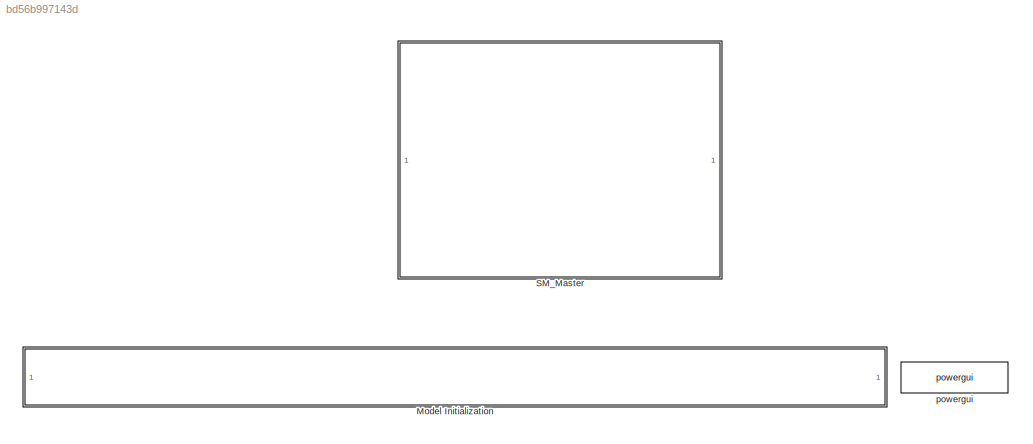
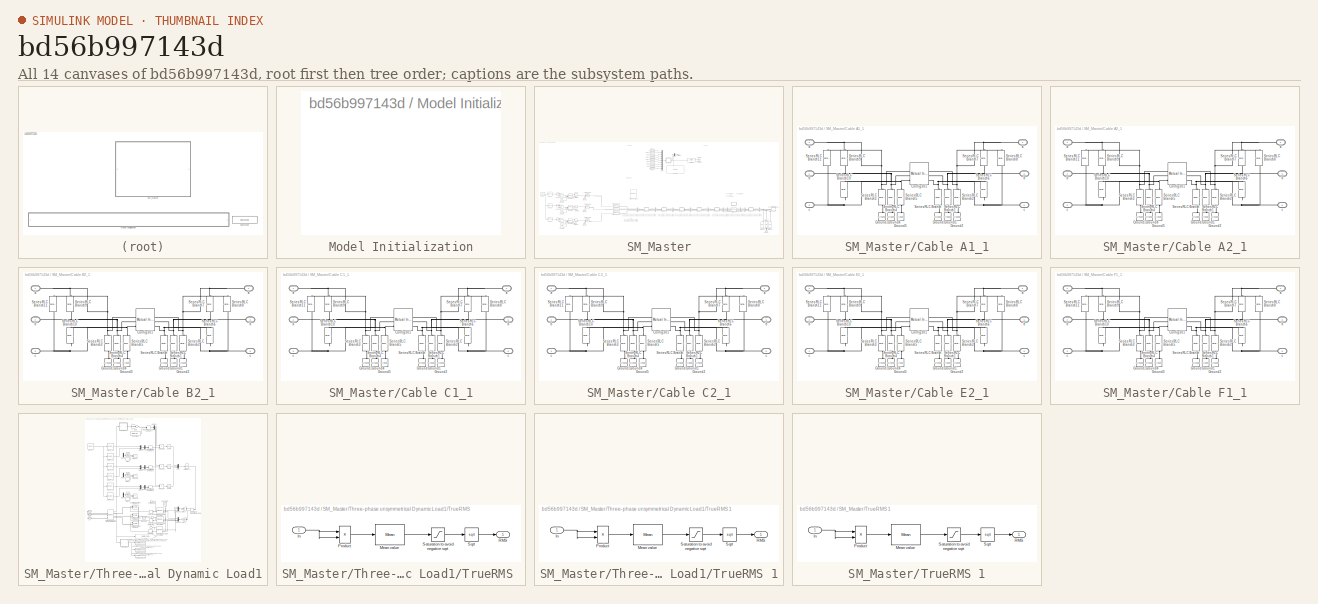
[diagram: thumbnail index - all 14 canvases of the model, root first then tree order]
MODEL slx_bd56b997143d
KIND model
CONFIG AbsTol = auto
CONFIG EnableMultiTasking = off
CONFIG FixedStep = Ts
CONFIG InitFcn = Ts=1e-4;run('Grid_Parameters_3ph.m');load('Data_3ph_Pars.mat');load('First_Busbar_Pars.mat');run('line_parameters.m')
CONFIG MaxStep = auto
CONFIG MinStep = auto
CONFIG PostLoadFcn = Ts=1e-4;run('Grid_Parameters_3ph.m');load('Data_3ph_Pars.mat');load('First_Busbar_Pars.mat');run('line_parameters.m')
CONFIG PreLoadFcn = Ts=1e-4;run('Grid_Parameters_3ph.m');load('Data_3ph_Pars.mat');load('First_Busbar_Pars.mat');run('line_parameters.m')
CONFIG RelTol = 1e-3
CONFIG SampleTimeConstraint = Unconstrained
CONFIG SolverName = ode4
CONFIG StartFcn = Ts=1e-4;run('Grid_Parameters_3ph.m');load('Data_3ph_Pars.mat');load('First_Busbar_Pars.mat');run('line_parameters.m')
CONFIG StartTime = 0.0
CONFIG StopTime = stoptime
BLOCK [SubSystem] Model Initialization
  CopyFcn = set_param(gcb,'LinkStatus','none')
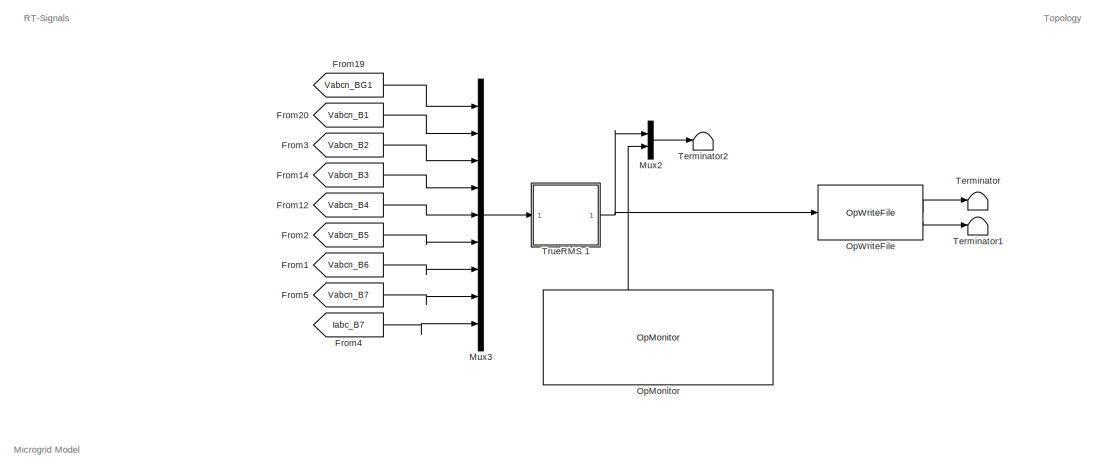
[diagram: SM_Master - part 1/4, top center region]
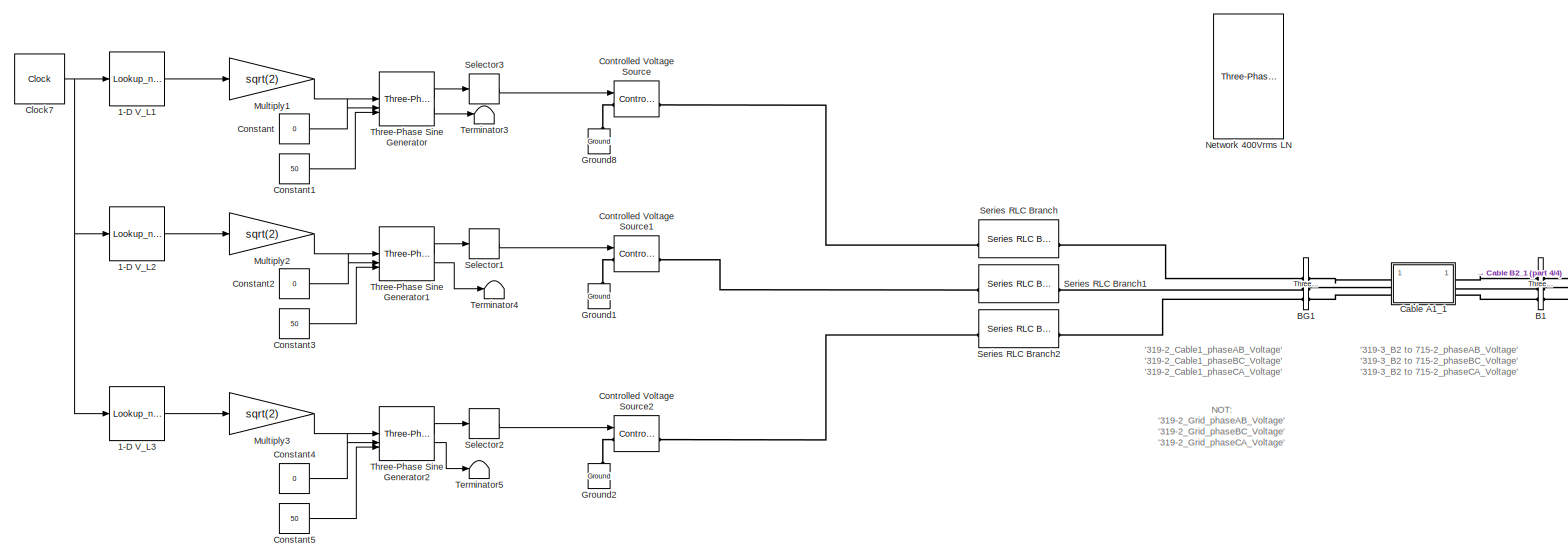
[diagram: SM_Master - part 2/4, bottom left region]
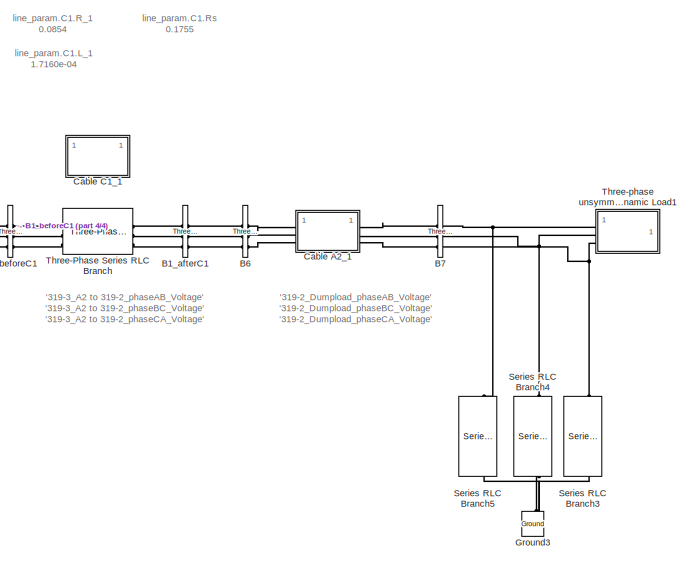
[diagram: SM_Master - part 3/4, bottom right region]
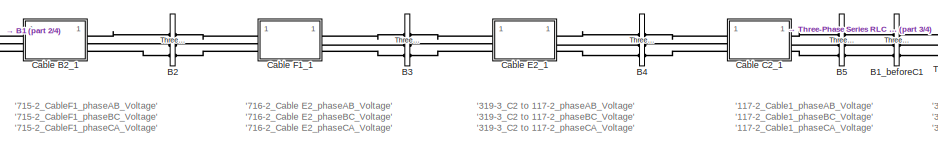
[diagram: SM_Master - part 4/4, bottom center region]
BLOCK [SubSystem] SM_Master
BLOCK [Lookup_n-D] SM_Master/1-D V_L1
  BreakpointsForDimension1 = t_factor * [0:timestep_meas_data:(First_Busbar_Pars.Time(datastop)-First_Busbar_Pars.Time(datastart))]'
  InputPortMap = u0
  InternalRulePriority = Speed
  InterpMethod = Flat
  NumberOfTableDimensions = 1
  RndMeth = Simplest
  Table = First_Busbar_Pars.VoltageL1(datastart:datastop)
BLOCK [Lookup_n-D] SM_Master/1-D V_L2
  BreakpointsForDimension1 = t_factor * [0:timestep_meas_data:(First_Busbar_Pars.Time(datastop)-First_Busbar_Pars.Time(datastart))]'
  InputPortMap = u0
  InternalRulePriority = Speed
  InterpMethod = Flat
  NumberOfTableDimensions = 1
  RndMeth = Simplest
  Table = First_Busbar_Pars.VoltageL2(datastart:datastop)
BLOCK [Lookup_n-D] SM_Master/1-D V_L3
  BreakpointsForDimension1 = t_factor * [0:timestep_meas_data:(First_Busbar_Pars.Time(datastop)-First_Busbar_Pars.Time(datastart))]'
  InputPortMap = u0
  InternalRulePriority = Speed
  InterpMethod = Flat
  NumberOfTableDimensions = 1
  RndMeth = Simplest
  Table = First_Busbar_Pars.VoltageL3(datastart:datastop)
BLOCK [Reference] SM_Master/B1  REF=spsThreePhaseVIMeasurementLib/Three-Phase
V-I Measurement
  LibrarySourceBlock = sps_lib/Sensors and Measurements/Three-Phase\nV-I Measurement
  SourceBlock = spsThreePhaseVIMeasurementLib/Three-Phase\nV-I Measurement
  SourceType = Three-Phase VI Measurement
BLOCK [Reference] SM_Master/B1_afterC1  REF=spsThreePhaseVIMeasurementLib/Three-Phase
V-I Measurement
  LibrarySourceBlock = sps_lib/Sensors and Measurements/Three-Phase\nV-I Measurement
  SourceBlock = spsThreePhaseVIMeasurementLib/Three-Phase\nV-I Measurement
  SourceType = Three-Phase VI Measurement
BLOCK [Reference] SM_Master/B1_beforeC1  REF=spsThreePhaseVIMeasurementLib/Three-Phase
V-I Measurement
  LibrarySourceBlock = sps_lib/Sensors and Measurements/Three-Phase\nV-I Measurement
  SourceBlock = spsThreePhaseVIMeasurementLib/Three-Phase\nV-I Measurement
  SourceType = Three-Phase VI Measurement
BLOCK [Reference] SM_Master/B2  REF=spsThreePhaseVIMeasurementLib/Three-Phase
V-I Measurement
  LibrarySourceBlock = sps_lib/Sensors and Measurements/Three-Phase\nV-I Measurement
  SourceBlock = spsThreePhaseVIMeasurementLib/Three-Phase\nV-I Measurement
  SourceType = Three-Phase VI Measurement
BLOCK [Reference] SM_Master/B3  REF=spsThreePhaseVIMeasurementLib/Three-Phase
V-I Measurement
  LibrarySourceBlock = sps_lib/Sensors and Measurements/Three-Phase\nV-I Measurement
  SourceBlock = spsThreePhaseVIMeasurementLib/Three-Phase\nV-I Measurement
  SourceType = Three-Phase VI Measurement
BLOCK [Reference] SM_Master/B4  REF=spsThreePhaseVIMeasurementLib/Three-Phase
V-I Measurement
  LibrarySourceBlock = sps_lib/Sensors and Measurements/Three-Phase\nV-I Measurement
  SourceBlock = spsThreePhaseVIMeasurementLib/Three-Phase\nV-I Measurement
  SourceType = Three-Phase VI Measurement
BLOCK [Reference] SM_Master/B5  REF=spsThreePhaseVIMeasurementLib/Three-Phase
V-I Measurement
  LibrarySourceBlock = sps_lib/Sensors and Measurements/Three-Phase\nV-I Measurement
  SourceBlock = spsThreePhaseVIMeasurementLib/Three-Phase\nV-I Measurement
  SourceType = Three-Phase VI Measurement
BLOCK [Reference] SM_Master/B6  REF=spsThreePhaseVIMeasurementLib/Three-Phase
V-I Measurement
  LibrarySourceBlock = sps_lib/Sensors and Measurements/Three-Phase\nV-I Measurement
  SourceBlock = spsThreePhaseVIMeasurementLib/Three-Phase\nV-I Measurement
  SourceType = Three-Phase VI Measurement
BLOCK [Reference] SM_Master/B7  REF=spsThreePhaseVIMeasurementLib/Three-Phase
V-I Measurement
  LibrarySourceBlock = sps_lib/Sensors and Measurements/Three-Phase\nV-I Measurement
  SourceBlock = spsThreePhaseVIMeasurementLib/Three-Phase\nV-I Measurement
  SourceType = Three-Phase VI Measurement
BLOCK [Reference] SM_Master/BG1  REF=spsThreePhaseVIMeasurementLib/Three-Phase
V-I Measurement
  LibrarySourceBlock = sps_lib/Sensors and Measurements/Three-Phase\nV-I Measurement
  SourceBlock = spsThreePhaseVIMeasurementLib/Three-Phase\nV-I Measurement
  SourceType = Three-Phase VI Measurement
BLOCK [SubSystem] SM_Master/Cable A1_1
BLOCK [Reference] SM_Master/Cable A1_1/Config301  REF=spsMutualInductanceLib/Mutual Inductance
  AttributesFormatString = \n
  LibrarySourceBlock = sps_lib/Passives/Mutual Inductance
  SourceBlock = spsMutualInductanceLib/Mutual Inductance
  SourceType = Mutual Inductance
BLOCK [Reference] SM_Master/Cable A1_1/Ground  REF=spsGroundLib/Ground
  LibrarySourceBlock = sps_lib/Utilities/Ground
  NameLocation = right
  SourceBlock = spsGroundLib/Ground
  SourceType = Ground
BLOCK [Reference] SM_Master/Cable A1_1/Ground1  REF=spsGroundLib/Ground
  LibrarySourceBlock = sps_lib/Utilities/Ground
  NameLocation = right
  SourceBlock = spsGroundLib/Ground
  SourceType = Ground
BLOCK [Reference] SM_Master/Cable A1_1/Ground2  REF=spsGroundLib/Ground
  LibrarySourceBlock = sps_lib/Utilities/Ground
  NameLocation = right
  SourceBlock = spsGroundLib/Ground
  SourceType = Ground
BLOCK [Reference] SM_Master/Cable A1_1/Ground3  REF=spsGroundLib/Ground
  LibrarySourceBlock = sps_lib/Utilities/Ground
  NameLocation = right
  SourceBlock = spsGroundLib/Ground
  SourceType = Ground
BLOCK [Reference] SM_Master/Cable A1_1/Ground4  REF=spsGroundLib/Ground
  LibrarySourceBlock = sps_lib/Utilities/Ground
  NameLocation = right
  SourceBlock = spsGroundLib/Ground
  SourceType = Ground
BLOCK [Reference] SM_Master/Cable A1_1/Ground5  REF=spsGroundLib/Ground
  LibrarySourceBlock = sps_lib/Utilities/Ground
  NameLocation = right
  SourceBlock = spsGroundLib/Ground
  SourceType = Ground
BLOCK [Reference] SM_Master/Cable A1_1/Series RLC Branch  REF=spsSeriesRLCBranchLib/Series RLC Branch
  LibrarySourceBlock = sps_lib/Passives/Series RLC Branch
  NameLocation = left
  SourceBlock = spsSeriesRLCBranchLib/Series RLC Branch
  SourceType = Series RLC Branch
BLOCK [Reference] SM_Master/Cable A1_1/Series RLC Branch1  REF=spsSeriesRLCBranchLib/Series RLC Branch
  LibrarySourceBlock = sps_lib/Passives/Series RLC Branch
  NameLocation = left
  SourceBlock = spsSeriesRLCBranchLib/Series RLC Branch
  SourceType = Series RLC Branch
BLOCK [Reference] SM_Master/Cable A1_1/Series RLC Branch10  REF=spsSeriesRLCBranchLib/Series RLC Branch
  LibrarySourceBlock = sps_lib/Passives/Series RLC Branch
  NameLocation = left
  SourceBlock = spsSeriesRLCBranchLib/Series RLC Branch
  SourceType = Series RLC Branch
BLOCK [Reference] SM_Master/Cable A1_1/Series RLC Branch11  REF=spsSeriesRLCBranchLib/Series RLC Branch
  LibrarySourceBlock = sps_lib/Passives/Series RLC Branch
  NameLocation = left
  SourceBlock = spsSeriesRLCBranchLib/Series RLC Branch
  SourceType = Series RLC Branch
BLOCK [Reference] SM_Master/Cable A1_1/Series RLC Branch2  REF=spsSeriesRLCBranchLib/Series RLC Branch
  LibrarySourceBlock = sps_lib/Passives/Series RLC Branch
  NameLocation = left
  SourceBlock = spsSeriesRLCBranchLib/Series RLC Branch
  SourceType = Series RLC Branch
BLOCK [Reference] SM_Master/Cable A1_1/Series RLC Branch3  REF=spsSeriesRLCBranchLib/Series RLC Branch
  LibrarySourceBlock = sps_lib/Passives/Series RLC Branch
  NameLocation = left
  SourceBlock = spsSeriesRLCBranchLib/Series RLC Branch
  SourceType = Series RLC Branch
BLOCK [Reference] SM_Master/Cable A1_1/Series RLC Branch4  REF=spsSeriesRLCBranchLib/Series RLC Branch
  LibrarySourceBlock = sps_lib/Passives/Series RLC Branch
  NameLocation = left
  SourceBlock = spsSeriesRLCBranchLib/Series RLC Branch
  SourceType = Series RLC Branch
BLOCK [Reference] SM_Master/Cable A1_1/Series RLC Branch5  REF=spsSeriesRLCBranchLib/Series RLC Branch
  LibrarySourceBlock = sps_lib/Passives/Series RLC Branch
  NameLocation = left
  SourceBlock = spsSeriesRLCBranchLib/Series RLC Branch
  SourceType = Series RLC Branch
BLOCK [Reference] SM_Master/Cable A1_1/Series RLC Branch6  REF=spsSeriesRLCBranchLib/Series RLC Branch
  LibrarySourceBlock = sps_lib/Passives/Series RLC Branch
  NameLocation = left
  SourceBlock = spsSeriesRLCBranchLib/Series RLC Branch
  SourceType = Series RLC Branch
BLOCK [Reference] SM_Master/Cable A1_1/Series RLC Branch7  REF=spsSeriesRLCBranchLib/Series RLC Branch
  LibrarySourceBlock = sps_lib/Passives/Series RLC Branch
  NameLocation = left
  SourceBlock = spsSeriesRLCBranchLib/Series RLC Branch
  SourceType = Series RLC Branch
BLOCK [Reference] SM_Master/Cable A1_1/Series RLC Branch8  REF=spsSeriesRLCBranchLib/Series RLC Branch
  LibrarySourceBlock = sps_lib/Passives/Series RLC Branch
  NameLocation = left
  SourceBlock = spsSeriesRLCBranchLib/Series RLC Branch
  SourceType = Series RLC Branch
BLOCK [Reference] SM_Master/Cable A1_1/Series RLC Branch9  REF=spsSeriesRLCBranchLib/Series RLC Branch
  LibrarySourceBlock = sps_lib/Passives/Series RLC Branch
  NameLocation = left
  SourceBlock = spsSeriesRLCBranchLib/Series RLC Branch
  SourceType = Series RLC Branch
BLOCK [PMIOPort] SM_Master/Cable A1_1/a
  Side = Left
  Tag = PMCPort
BLOCK [PMIOPort] SM_Master/Cable A1_1/a 
  NameLocation = top
  Port = 4
  Side = Right
  Tag = PMCPort
BLOCK [PMIOPort] SM_Master/Cable A1_1/b
  Port = 2
  Side = Left
  Tag = PMCPort
BLOCK [PMIOPort] SM_Master/Cable A1_1/b 
  NameLocation = top
  Port = 5
  Side = Right
  Tag = PMCPort
BLOCK [PMIOPort] SM_Master/Cable A1_1/c
  Port = 3
  Side = Left
  Tag = PMCPort
BLOCK [PMIOPort] SM_Master/Cable A1_1/c 
  NameLocation = top
  Port = 6
  Side = Right
  Tag = PMCPort
BLOCK [SubSystem] SM_Master/Cable A2_1
BLOCK [Reference] SM_Master/Cable A2_1/Config301  REF=spsMutualInductanceLib/Mutual Inductance
  AttributesFormatString = \n
  LibrarySourceBlock = sps_lib/Passives/Mutual Inductance
  SourceBlock = spsMutualInductanceLib/Mutual Inductance
  SourceType = Mutual Inductance
BLOCK [Reference] SM_Master/Cable A2_1/Ground  REF=spsGroundLib/Ground
  LibrarySourceBlock = sps_lib/Utilities/Ground
  NameLocation = right
  SourceBlock = spsGroundLib/Ground
  SourceType = Ground
BLOCK [Reference] SM_Master/Cable A2_1/Ground1  REF=spsGroundLib/Ground
  LibrarySourceBlock = sps_lib/Utilities/Ground
  NameLocation = right
  SourceBlock = spsGroundLib/Ground
  SourceType = Ground
BLOCK [Reference] SM_Master/Cable A2_1/Ground2  REF=spsGroundLib/Ground
  LibrarySourceBlock = sps_lib/Utilities/Ground
  NameLocation = right
  SourceBlock = spsGroundLib/Ground
  SourceType = Ground
BLOCK [Reference] SM_Master/Cable A2_1/Ground3  REF=spsGroundLib/Ground
  LibrarySourceBlock = sps_lib/Utilities/Ground
  NameLocation = right
  SourceBlock = spsGroundLib/Ground
  SourceType = Ground
BLOCK [Reference] SM_Master/Cable A2_1/Ground4  REF=spsGroundLib/Ground
  LibrarySourceBlock = sps_lib/Utilities/Ground
  NameLocation = right
  SourceBlock = spsGroundLib/Ground
  SourceType = Ground
BLOCK [Reference] SM_Master/Cable A2_1/Ground5  REF=spsGroundLib/Ground
  LibrarySourceBlock = sps_lib/Utilities/Ground
  NameLocation = right
  SourceBlock = spsGroundLib/Ground
  SourceType = Ground
BLOCK [Reference] SM_Master/Cable A2_1/Series RLC Branch  REF=spsSeriesRLCBranchLib/Series RLC Branch
  LibrarySourceBlock = sps_lib/Passives/Series RLC Branch
  NameLocation = left
  SourceBlock = spsSeriesRLCBranchLib/Series RLC Branch
  SourceType = Series RLC Branch
BLOCK [Reference] SM_Master/Cable A2_1/Series RLC Branch1  REF=spsSeriesRLCBranchLib/Series RLC Branch
  LibrarySourceBlock = sps_lib/Passives/Series RLC Branch
  NameLocation = left
  SourceBlock = spsSeriesRLCBranchLib/Series RLC Branch
  SourceType = Series RLC Branch
BLOCK [Reference] SM_Master/Cable A2_1/Series RLC Branch10  REF=spsSeriesRLCBranchLib/Series RLC Branch
  LibrarySourceBlock = sps_lib/Passives/Series RLC Branch
  NameLocation = left
  SourceBlock = spsSeriesRLCBranchLib/Series RLC Branch
  SourceType = Series RLC Branch
BLOCK [Reference] SM_Master/Cable A2_1/Series RLC Branch11  REF=spsSeriesRLCBranchLib/Series RLC Branch
  LibrarySourceBlock = sps_lib/Passives/Series RLC Branch
  NameLocation = left
  SourceBlock = spsSeriesRLCBranchLib/Series RLC Branch
  SourceType = Series RLC Branch
BLOCK [Reference] SM_Master/Cable A2_1/Series RLC Branch2  REF=spsSeriesRLCBranchLib/Series RLC Branch
  LibrarySourceBlock = sps_lib/Passives/Series RLC Branch
  NameLocation = left
  SourceBlock = spsSeriesRLCBranchLib/Series RLC Branch
  SourceType = Series RLC Branch
BLOCK [Reference] SM_Master/Cable A2_1/Series RLC Branch3  REF=spsSeriesRLCBranchLib/Series RLC Branch
  LibrarySourceBlock = sps_lib/Passives/Series RLC Branch
  NameLocation = left
  SourceBlock = spsSeriesRLCBranchLib/Series RLC Branch
  SourceType = Series RLC Branch
BLOCK [Reference] SM_Master/Cable A2_1/Series RLC Branch4  REF=spsSeriesRLCBranchLib/Series RLC Branch
  LibrarySourceBlock = sps_lib/Passives/Series RLC Branch
  NameLocation = left
  SourceBlock = spsSeriesRLCBranchLib/Series RLC Branch
  SourceType = Series RLC Branch
BLOCK [Reference] SM_Master/Cable A2_1/Series RLC Branch5  REF=spsSeriesRLCBranchLib/Series RLC Branch
  LibrarySourceBlock = sps_lib/Passives/Series RLC Branch
  NameLocation = left
  SourceBlock = spsSeriesRLCBranchLib/Series RLC Branch
  SourceType = Series RLC Branch
BLOCK [Reference] SM_Master/Cable A2_1/Series RLC Branch6  REF=spsSeriesRLCBranchLib/Series RLC Branch
  LibrarySourceBlock = sps_lib/Passives/Series RLC Branch
  NameLocation = left
  SourceBlock = spsSeriesRLCBranchLib/Series RLC Branch
  SourceType = Series RLC Branch
BLOCK [Reference] SM_Master/Cable A2_1/Series RLC Branch7  REF=spsSeriesRLCBranchLib/Series RLC Branch
  LibrarySourceBlock = sps_lib/Passives/Series RLC Branch
  NameLocation = left
  SourceBlock = spsSeriesRLCBranchLib/Series RLC Branch
  SourceType = Series RLC Branch
BLOCK [Reference] SM_Master/Cable A2_1/Series RLC Branch8  REF=spsSeriesRLCBranchLib/Series RLC Branch
  LibrarySourceBlock = sps_lib/Passives/Series RLC Branch
  NameLocation = left
  SourceBlock = spsSeriesRLCBranchLib/Series RLC Branch
  SourceType = Series RLC Branch
BLOCK [Reference] SM_Master/Cable A2_1/Series RLC Branch9  REF=spsSeriesRLCBranchLib/Series RLC Branch
  LibrarySourceBlock = sps_lib/Passives/Series RLC Branch
  NameLocation = left
  SourceBlock = spsSeriesRLCBranchLib/Series RLC Branch
  SourceType = Series RLC Branch
BLOCK [PMIOPort] SM_Master/Cable A2_1/a
  Side = Left
  Tag = PMCPort
BLOCK [PMIOPort] SM_Master/Cable A2_1/a 
  NameLocation = top
  Port = 4
  Side = Right
  Tag = PMCPort
BLOCK [PMIOPort] SM_Master/Cable A2_1/b
  Port = 2
  Side = Left
  Tag = PMCPort
BLOCK [PMIOPort] SM_Master/Cable A2_1/b 
  NameLocation = top
  Port = 5
  Side = Right
  Tag = PMCPort
BLOCK [PMIOPort] SM_Master/Cable A2_1/c
  Port = 3
  Side = Left
  Tag = PMCPort
BLOCK [PMIOPort] SM_Master/Cable A2_1/c 
  NameLocation = top
  Port = 6
  Side = Right
  Tag = PMCPort
BLOCK [SubSystem] SM_Master/Cable B2_1
BLOCK [Reference] SM_Master/Cable B2_1/Config301  REF=spsMutualInductanceLib/Mutual Inductance
  AttributesFormatString = \n
  LibrarySourceBlock = sps_lib/Passives/Mutual Inductance
  SourceBlock = spsMutualInductanceLib/Mutual Inductance
  SourceType = Mutual Inductance
BLOCK [Reference] SM_Master/Cable B2_1/Ground  REF=spsGroundLib/Ground
  LibrarySourceBlock = sps_lib/Utilities/Ground
  NameLocation = right
  SourceBlock = spsGroundLib/Ground
  SourceType = Ground
BLOCK [Reference] SM_Master/Cable B2_1/Ground1  REF=spsGroundLib/Ground
  LibrarySourceBlock = sps_lib/Utilities/Ground
  NameLocation = right
  SourceBlock = spsGroundLib/Ground
  SourceType = Ground
BLOCK [Reference] SM_Master/Cable B2_1/Ground2  REF=spsGroundLib/Ground
  LibrarySourceBlock = sps_lib/Utilities/Ground
  NameLocation = right
  SourceBlock = spsGroundLib/Ground
  SourceType = Ground
BLOCK [Reference] SM_Master/Cable B2_1/Ground3  REF=spsGroundLib/Ground
  LibrarySourceBlock = sps_lib/Utilities/Ground
  NameLocation = right
  SourceBlock = spsGroundLib/Ground
  SourceType = Ground
BLOCK [Reference] SM_Master/Cable B2_1/Ground4  REF=spsGroundLib/Ground
  LibrarySourceBlock = sps_lib/Utilities/Ground
  NameLocation = right
  SourceBlock = spsGroundLib/Ground
  SourceType = Ground
BLOCK [Reference] SM_Master/Cable B2_1/Ground5  REF=spsGroundLib/Ground
  LibrarySourceBlock = sps_lib/Utilities/Ground
  NameLocation = right
  SourceBlock = spsGroundLib/Ground
  SourceType = Ground
BLOCK [Reference] SM_Master/Cable B2_1/Series RLC Branch  REF=spsSeriesRLCBranchLib/Series RLC Branch
  LibrarySourceBlock = sps_lib/Passives/Series RLC Branch
  NameLocation = left
  SourceBlock = spsSeriesRLCBranchLib/Series RLC Branch
  SourceType = Series RLC Branch
BLOCK [Reference] SM_Master/Cable B2_1/Series RLC Branch1  REF=spsSeriesRLCBranchLib/Series RLC Branch
  LibrarySourceBlock = sps_lib/Passives/Series RLC Branch
  NameLocation = left
  SourceBlock = spsSeriesRLCBranchLib/Series RLC Branch
  SourceType = Series RLC Branch
BLOCK [Reference] SM_Master/Cable B2_1/Series RLC Branch10  REF=spsSeriesRLCBranchLib/Series RLC Branch
  LibrarySourceBlock = sps_lib/Passives/Series RLC Branch
  NameLocation = left
  SourceBlock = spsSeriesRLCBranchLib/Series RLC Branch
  SourceType = Series RLC Branch
BLOCK [Reference] SM_Master/Cable B2_1/Series RLC Branch11  REF=spsSeriesRLCBranchLib/Series RLC Branch
  LibrarySourceBlock = sps_lib/Passives/Series RLC Branch
  NameLocation = left
  SourceBlock = spsSeriesRLCBranchLib/Series RLC Branch
  SourceType = Series RLC Branch
BLOCK [Reference] SM_Master/Cable B2_1/Series RLC Branch2  REF=spsSeriesRLCBranchLib/Series RLC Branch
  LibrarySourceBlock = sps_lib/Passives/Series RLC Branch
  NameLocation = left
  SourceBlock = spsSeriesRLCBranchLib/Series RLC Branch
  SourceType = Series RLC Branch
BLOCK [Reference] SM_Master/Cable B2_1/Series RLC Branch3  REF=spsSeriesRLCBranchLib/Series RLC Branch
  LibrarySourceBlock = sps_lib/Passives/Series RLC Branch
  NameLocation = left
  SourceBlock = spsSeriesRLCBranchLib/Series RLC Branch
  SourceType = Series RLC Branch
BLOCK [Reference] SM_Master/Cable B2_1/Series RLC Branch4  REF=spsSeriesRLCBranchLib/Series RLC Branch
  LibrarySourceBlock = sps_lib/Passives/Series RLC Branch
  NameLocation = left
  SourceBlock = spsSeriesRLCBranchLib/Series RLC Branch
  SourceType = Series RLC Branch
BLOCK [Reference] SM_Master/Cable B2_1/Series RLC Branch5  REF=spsSeriesRLCBranchLib/Series RLC Branch
  LibrarySourceBlock = sps_lib/Passives/Series RLC Branch
  NameLocation = left
  SourceBlock = spsSeriesRLCBranchLib/Series RLC Branch
  SourceType = Series RLC Branch
BLOCK [Reference] SM_Master/Cable B2_1/Series RLC Branch6  REF=spsSeriesRLCBranchLib/Series RLC Branch
  LibrarySourceBlock = sps_lib/Passives/Series RLC Branch
  NameLocation = left
  SourceBlock = spsSeriesRLCBranchLib/Series RLC Branch
  SourceType = Series RLC Branch
BLOCK [Reference] SM_Master/Cable B2_1/Series RLC Branch7  REF=spsSeriesRLCBranchLib/Series RLC Branch
  LibrarySourceBlock = sps_lib/Passives/Series RLC Branch
  NameLocation = left
  SourceBlock = spsSeriesRLCBranchLib/Series RLC Branch
  SourceType = Series RLC Branch
BLOCK [Reference] SM_Master/Cable B2_1/Series RLC Branch8  REF=spsSeriesRLCBranchLib/Series RLC Branch
  LibrarySourceBlock = sps_lib/Passives/Series RLC Branch
  NameLocation = left
  SourceBlock = spsSeriesRLCBranchLib/Series RLC Branch
  SourceType = Series RLC Branch
BLOCK [Reference] SM_Master/Cable B2_1/Series RLC Branch9  REF=spsSeriesRLCBranchLib/Series RLC Branch
  LibrarySourceBlock = sps_lib/Passives/Series RLC Branch
  NameLocation = left
  SourceBlock = spsSeriesRLCBranchLib/Series RLC Branch
  SourceType = Series RLC Branch
BLOCK [PMIOPort] SM_Master/Cable B2_1/a
  Side = Left
  Tag = PMCPort
BLOCK [PMIOPort] SM_Master/Cable B2_1/a 
  NameLocation = top
  Port = 4
  Side = Right
  Tag = PMCPort
BLOCK [PMIOPort] SM_Master/Cable B2_1/b
  Port = 2
  Side = Left
  Tag = PMCPort
BLOCK [PMIOPort] SM_Master/Cable B2_1/b 
  NameLocation = top
  Port = 5
  Side = Right
  Tag = PMCPort
BLOCK [PMIOPort] SM_Master/Cable B2_1/c
  Port = 3
  Side = Left
  Tag = PMCPort
BLOCK [PMIOPort] SM_Master/Cable B2_1/c 
  NameLocation = top
  Port = 6
  Side = Right
  Tag = PMCPort
BLOCK [SubSystem] SM_Master/Cable C1_1
  Commented = on
BLOCK [Reference] SM_Master/Cable C1_1/Config301  REF=spsMutualInductanceLib/Mutual Inductance
  AttributesFormatString = \n
  LibrarySourceBlock = sps_lib/Passives/Mutual Inductance
  SourceBlock = spsMutualInductanceLib/Mutual Inductance
  SourceType = Mutual Inductance
BLOCK [Reference] SM_Master/Cable C1_1/Ground  REF=spsGroundLib/Ground
  LibrarySourceBlock = sps_lib/Utilities/Ground
  NameLocation = right
  SourceBlock = spsGroundLib/Ground
  SourceType = Ground
BLOCK [Reference] SM_Master/Cable C1_1/Ground1  REF=spsGroundLib/Ground
  LibrarySourceBlock = sps_lib/Utilities/Ground
  NameLocation = right
  SourceBlock = spsGroundLib/Ground
  SourceType = Ground
BLOCK [Reference] SM_Master/Cable C1_1/Ground2  REF=spsGroundLib/Ground
  LibrarySourceBlock = sps_lib/Utilities/Ground
  NameLocation = right
  SourceBlock = spsGroundLib/Ground
  SourceType = Ground
BLOCK [Reference] SM_Master/Cable C1_1/Ground3  REF=spsGroundLib/Ground
  LibrarySourceBlock = sps_lib/Utilities/Ground
  NameLocation = right
  SourceBlock = spsGroundLib/Ground
  SourceType = Ground
BLOCK [Reference] SM_Master/Cable C1_1/Ground4  REF=spsGroundLib/Ground
  LibrarySourceBlock = sps_lib/Utilities/Ground
  NameLocation = right
  SourceBlock = spsGroundLib/Ground
  SourceType = Ground
BLOCK [Reference] SM_Master/Cable C1_1/Ground5  REF=spsGroundLib/Ground
  LibrarySourceBlock = sps_lib/Utilities/Ground
  NameLocation = right
  SourceBlock = spsGroundLib/Ground
  SourceType = Ground
BLOCK [Reference] SM_Master/Cable C1_1/Series RLC Branch  REF=spsSeriesRLCBranchLib/Series RLC Branch
  LibrarySourceBlock = sps_lib/Passives/Series RLC Branch
  NameLocation = left
  SourceBlock = spsSeriesRLCBranchLib/Series RLC Branch
  SourceType = Series RLC Branch
BLOCK [Reference] SM_Master/Cable C1_1/Series RLC Branch1  REF=spsSeriesRLCBranchLib/Series RLC Branch
  LibrarySourceBlock = sps_lib/Passives/Series RLC Branch
  NameLocation = left
  SourceBlock = spsSeriesRLCBranchLib/Series RLC Branch
  SourceType = Series RLC Branch
BLOCK [Reference] SM_Master/Cable C1_1/Series RLC Branch10  REF=spsSeriesRLCBranchLib/Series RLC Branch
  LibrarySourceBlock = sps_lib/Passives/Series RLC Branch
  NameLocation = left
  SourceBlock = spsSeriesRLCBranchLib/Series RLC Branch
  SourceType = Series RLC Branch
BLOCK [Reference] SM_Master/Cable C1_1/Series RLC Branch11  REF=spsSeriesRLCBranchLib/Series RLC Branch
  LibrarySourceBlock = sps_lib/Passives/Series RLC Branch
  NameLocation = left
  SourceBlock = spsSeriesRLCBranchLib/Series RLC Branch
  SourceType = Series RLC Branch
BLOCK [Reference] SM_Master/Cable C1_1/Series RLC Branch2  REF=spsSeriesRLCBranchLib/Series RLC Branch
  LibrarySourceBlock = sps_lib/Passives/Series RLC Branch
  NameLocation = left
  SourceBlock = spsSeriesRLCBranchLib/Series RLC Branch
  SourceType = Series RLC Branch
BLOCK [Reference] SM_Master/Cable C1_1/Series RLC Branch3  REF=spsSeriesRLCBranchLib/Series RLC Branch
  LibrarySourceBlock = sps_lib/Passives/Series RLC Branch
  NameLocation = left
  SourceBlock = spsSeriesRLCBranchLib/Series RLC Branch
  SourceType = Series RLC Branch
BLOCK [Reference] SM_Master/Cable C1_1/Series RLC Branch4  REF=spsSeriesRLCBranchLib/Series RLC Branch
  LibrarySourceBlock = sps_lib/Passives/Series RLC Branch
  NameLocation = left
  SourceBlock = spsSeriesRLCBranchLib/Series RLC Branch
  SourceType = Series RLC Branch
BLOCK [Reference] SM_Master/Cable C1_1/Series RLC Branch5  REF=spsSeriesRLCBranchLib/Series RLC Branch
  LibrarySourceBlock = sps_lib/Passives/Series RLC Branch
  NameLocation = left
  SourceBlock = spsSeriesRLCBranchLib/Series RLC Branch
  SourceType = Series RLC Branch
BLOCK [Reference] SM_Master/Cable C1_1/Series RLC Branch6  REF=spsSeriesRLCBranchLib/Series RLC Branch
  LibrarySourceBlock = sps_lib/Passives/Series RLC Branch
  NameLocation = left
  SourceBlock = spsSeriesRLCBranchLib/Series RLC Branch
  SourceType = Series RLC Branch
BLOCK [Reference] SM_Master/Cable C1_1/Series RLC Branch7  REF=spsSeriesRLCBranchLib/Series RLC Branch
  LibrarySourceBlock = sps_lib/Passives/Series RLC Branch
  NameLocation = left
  SourceBlock = spsSeriesRLCBranchLib/Series RLC Branch
  SourceType = Series RLC Branch
BLOCK [Reference] SM_Master/Cable C1_1/Series RLC Branch8  REF=spsSeriesRLCBranchLib/Series RLC Branch
  LibrarySourceBlock = sps_lib/Passives/Series RLC Branch
  NameLocation = left
  SourceBlock = spsSeriesRLCBranchLib/Series RLC Branch
  SourceType = Series RLC Branch
BLOCK [Reference] SM_Master/Cable C1_1/Series RLC Branch9  REF=spsSeriesRLCBranchLib/Series RLC Branch
  LibrarySourceBlock = sps_lib/Passives/Series RLC Branch
  NameLocation = left
  SourceBlock = spsSeriesRLCBranchLib/Series RLC Branch
  SourceType = Series RLC Branch
BLOCK [PMIOPort] SM_Master/Cable C1_1/a
  Side = Left
  Tag = PMCPort
BLOCK [PMIOPort] SM_Master/Cable C1_1/a 
  NameLocation = top
  Port = 4
  Side = Right
  Tag = PMCPort
BLOCK [PMIOPort] SM_Master/Cable C1_1/b
  Port = 2
  Side = Left
  Tag = PMCPort
BLOCK [PMIOPort] SM_Master/Cable C1_1/b 
  NameLocation = top
  Port = 5
  Side = Right
  Tag = PMCPort
BLOCK [PMIOPort] SM_Master/Cable C1_1/c
  Port = 3
  Side = Left
  Tag = PMCPort
BLOCK [PMIOPort] SM_Master/Cable C1_1/c 
  NameLocation = top
  Port = 6
  Side = Right
  Tag = PMCPort
BLOCK [SubSystem] SM_Master/Cable C2_1
BLOCK [Reference] SM_Master/Cable C2_1/Config301  REF=spsMutualInductanceLib/Mutual Inductance
  AttributesFormatString = \n
  LibrarySourceBlock = sps_lib/Passives/Mutual Inductance
  SourceBlock = spsMutualInductanceLib/Mutual Inductance
  SourceType = Mutual Inductance
BLOCK [Reference] SM_Master/Cable C2_1/Ground  REF=spsGroundLib/Ground
  LibrarySourceBlock = sps_lib/Utilities/Ground
  NameLocation = right
  SourceBlock = spsGroundLib/Ground
  SourceType = Ground
BLOCK [Reference] SM_Master/Cable C2_1/Ground1  REF=spsGroundLib/Ground
  LibrarySourceBlock = sps_lib/Utilities/Ground
  NameLocation = right
  SourceBlock = spsGroundLib/Ground
  SourceType = Ground
BLOCK [Reference] SM_Master/Cable C2_1/Ground2  REF=spsGroundLib/Ground
  LibrarySourceBlock = sps_lib/Utilities/Ground
  NameLocation = right
  SourceBlock = spsGroundLib/Ground
  SourceType = Ground
BLOCK [Reference] SM_Master/Cable C2_1/Ground3  REF=spsGroundLib/Ground
  LibrarySourceBlock = sps_lib/Utilities/Ground
  NameLocation = right
  SourceBlock = spsGroundLib/Ground
  SourceType = Ground
BLOCK [Reference] SM_Master/Cable C2_1/Ground4  REF=spsGroundLib/Ground
  LibrarySourceBlock = sps_lib/Utilities/Ground
  NameLocation = right
  SourceBlock = spsGroundLib/Ground
  SourceType = Ground
BLOCK [Reference] SM_Master/Cable C2_1/Ground5  REF=spsGroundLib/Ground
  LibrarySourceBlock = sps_lib/Utilities/Ground
  NameLocation = right
  SourceBlock = spsGroundLib/Ground
  SourceType = Ground
BLOCK [Reference] SM_Master/Cable C2_1/Series RLC Branch  REF=spsSeriesRLCBranchLib/Series RLC Branch
  LibrarySourceBlock = sps_lib/Passives/Series RLC Branch
  NameLocation = left
  SourceBlock = spsSeriesRLCBranchLib/Series RLC Branch
  SourceType = Series RLC Branch
BLOCK [Reference] SM_Master/Cable C2_1/Series RLC Branch1  REF=spsSeriesRLCBranchLib/Series RLC Branch
  LibrarySourceBlock = sps_lib/Passives/Series RLC Branch
  NameLocation = left
  SourceBlock = spsSeriesRLCBranchLib/Series RLC Branch
  SourceType = Series RLC Branch
BLOCK [Reference] SM_Master/Cable C2_1/Series RLC Branch10  REF=spsSeriesRLCBranchLib/Series RLC Branch
  LibrarySourceBlock = sps_lib/Passives/Series RLC Branch
  NameLocation = left
  SourceBlock = spsSeriesRLCBranchLib/Series RLC Branch
  SourceType = Series RLC Branch
BLOCK [Reference] SM_Master/Cable C2_1/Series RLC Branch11  REF=spsSeriesRLCBranchLib/Series RLC Branch
  LibrarySourceBlock = sps_lib/Passives/Series RLC Branch
  NameLocation = left
  SourceBlock = spsSeriesRLCBranchLib/Series RLC Branch
  SourceType = Series RLC Branch
BLOCK [Reference] SM_Master/Cable C2_1/Series RLC Branch2  REF=spsSeriesRLCBranchLib/Series RLC Branch
  LibrarySourceBlock = sps_lib/Passives/Series RLC Branch
  NameLocation = left
  SourceBlock = spsSeriesRLCBranchLib/Series RLC Branch
  SourceType = Series RLC Branch
BLOCK [Reference] SM_Master/Cable C2_1/Series RLC Branch3  REF=spsSeriesRLCBranchLib/Series RLC Branch
  LibrarySourceBlock = sps_lib/Passives/Series RLC Branch
  NameLocation = left
  SourceBlock = spsSeriesRLCBranchLib/Series RLC Branch
  SourceType = Series RLC Branch
BLOCK [Reference] SM_Master/Cable C2_1/Series RLC Branch4  REF=spsSeriesRLCBranchLib/Series RLC Branch
  LibrarySourceBlock = sps_lib/Passives/Series RLC Branch
  NameLocation = left
  SourceBlock = spsSeriesRLCBranchLib/Series RLC Branch
  SourceType = Series RLC Branch
BLOCK [Reference] SM_Master/Cable C2_1/Series RLC Branch5  REF=spsSeriesRLCBranchLib/Series RLC Branch
  LibrarySourceBlock = sps_lib/Passives/Series RLC Branch
  NameLocation = left
  SourceBlock = spsSeriesRLCBranchLib/Series RLC Branch
  SourceType = Series RLC Branch
BLOCK [Reference] SM_Master/Cable C2_1/Series RLC Branch6  REF=spsSeriesRLCBranchLib/Series RLC Branch
  LibrarySourceBlock = sps_lib/Passives/Series RLC Branch
  NameLocation = left
  SourceBlock = spsSeriesRLCBranchLib/Series RLC Branch
  SourceType = Series RLC Branch
BLOCK [Reference] SM_Master/Cable C2_1/Series RLC Branch7  REF=spsSeriesRLCBranchLib/Series RLC Branch
  LibrarySourceBlock = sps_lib/Passives/Series RLC Branch
  NameLocation = left
  SourceBlock = spsSeriesRLCBranchLib/Series RLC Branch
  SourceType = Series RLC Branch
BLOCK [Reference] SM_Master/Cable C2_1/Series RLC Branch8  REF=spsSeriesRLCBranchLib/Series RLC Branch
  LibrarySourceBlock = sps_lib/Passives/Series RLC Branch
  NameLocation = left
  SourceBlock = spsSeriesRLCBranchLib/Series RLC Branch
  SourceType = Series RLC Branch
BLOCK [Reference] SM_Master/Cable C2_1/Series RLC Branch9  REF=spsSeriesRLCBranchLib/Series RLC Branch
  LibrarySourceBlock = sps_lib/Passives/Series RLC Branch
  NameLocation = left
  SourceBlock = spsSeriesRLCBranchLib/Series RLC Branch
  SourceType = Series RLC Branch
BLOCK [PMIOPort] SM_Master/Cable C2_1/a
  Side = Left
  Tag = PMCPort
BLOCK [PMIOPort] SM_Master/Cable C2_1/a 
  NameLocation = top
  Port = 4
  Side = Right
  Tag = PMCPort
BLOCK [PMIOPort] SM_Master/Cable C2_1/b
  Port = 2
  Side = Left
  Tag = PMCPort
BLOCK [PMIOPort] SM_Master/Cable C2_1/b 
  NameLocation = top
  Port = 5
  Side = Right
  Tag = PMCPort
BLOCK [PMIOPort] SM_Master/Cable C2_1/c
  Port = 3
  Side = Left
  Tag = PMCPort
BLOCK [PMIOPort] SM_Master/Cable C2_1/c 
  NameLocation = top
  Port = 6
  Side = Right
  Tag = PMCPort
BLOCK [SubSystem] SM_Master/Cable E2_1
BLOCK [Reference] SM_Master/Cable E2_1/Config301  REF=spsMutualInductanceLib/Mutual Inductance
  AttributesFormatString = \n
  LibrarySourceBlock = sps_lib/Passives/Mutual Inductance
  SourceBlock = spsMutualInductanceLib/Mutual Inductance
  SourceType = Mutual Inductance
BLOCK [Reference] SM_Master/Cable E2_1/Ground  REF=spsGroundLib/Ground
  LibrarySourceBlock = sps_lib/Utilities/Ground
  NameLocation = right
  SourceBlock = spsGroundLib/Ground
  SourceType = Ground
BLOCK [Reference] SM_Master/Cable E2_1/Ground1  REF=spsGroundLib/Ground
  LibrarySourceBlock = sps_lib/Utilities/Ground
  NameLocation = right
  SourceBlock = spsGroundLib/Ground
  SourceType = Ground
BLOCK [Reference] SM_Master/Cable E2_1/Ground2  REF=spsGroundLib/Ground
  LibrarySourceBlock = sps_lib/Utilities/Ground
  NameLocation = right
  SourceBlock = spsGroundLib/Ground
  SourceType = Ground
BLOCK [Reference] SM_Master/Cable E2_1/Ground3  REF=spsGroundLib/Ground
  LibrarySourceBlock = sps_lib/Utilities/Ground
  NameLocation = right
  SourceBlock = spsGroundLib/Ground
  SourceType = Ground
BLOCK [Reference] SM_Master/Cable E2_1/Ground4  REF=spsGroundLib/Ground
  LibrarySourceBlock = sps_lib/Utilities/Ground
  NameLocation = right
  SourceBlock = spsGroundLib/Ground
  SourceType = Ground
BLOCK [Reference] SM_Master/Cable E2_1/Ground5  REF=spsGroundLib/Ground
  LibrarySourceBlock = sps_lib/Utilities/Ground
  NameLocation = right
  SourceBlock = spsGroundLib/Ground
  SourceType = Ground
BLOCK [Reference] SM_Master/Cable E2_1/Series RLC Branch  REF=spsSeriesRLCBranchLib/Series RLC Branch
  LibrarySourceBlock = sps_lib/Passives/Series RLC Branch
  NameLocation = left
  SourceBlock = spsSeriesRLCBranchLib/Series RLC Branch
  SourceType = Series RLC Branch
BLOCK [Reference] SM_Master/Cable E2_1/Series RLC Branch1  REF=spsSeriesRLCBranchLib/Series RLC Branch
  LibrarySourceBlock = sps_lib/Passives/Series RLC Branch
  NameLocation = left
  SourceBlock = spsSeriesRLCBranchLib/Series RLC Branch
  SourceType = Series RLC Branch
BLOCK [Reference] SM_Master/Cable E2_1/Series RLC Branch10  REF=spsSeriesRLCBranchLib/Series RLC Branch
  LibrarySourceBlock = sps_lib/Passives/Series RLC Branch
  NameLocation = left
  SourceBlock = spsSeriesRLCBranchLib/Series RLC Branch
  SourceType = Series RLC Branch
BLOCK [Reference] SM_Master/Cable E2_1/Series RLC Branch11  REF=spsSeriesRLCBranchLib/Series RLC Branch
  LibrarySourceBlock = sps_lib/Passives/Series RLC Branch
  NameLocation = left
  SourceBlock = spsSeriesRLCBranchLib/Series RLC Branch
  SourceType = Series RLC Branch
BLOCK [Reference] SM_Master/Cable E2_1/Series RLC Branch2  REF=spsSeriesRLCBranchLib/Series RLC Branch
  LibrarySourceBlock = sps_lib/Passives/Series RLC Branch
  NameLocation = left
  SourceBlock = spsSeriesRLCBranchLib/Series RLC Branch
  SourceType = Series RLC Branch
BLOCK [Reference] SM_Master/Cable E2_1/Series RLC Branch3  REF=spsSeriesRLCBranchLib/Series RLC Branch
  LibrarySourceBlock = sps_lib/Passives/Series RLC Branch
  NameLocation = left
  SourceBlock = spsSeriesRLCBranchLib/Series RLC Branch
  SourceType = Series RLC Branch
BLOCK [Reference] SM_Master/Cable E2_1/Series RLC Branch4  REF=spsSeriesRLCBranchLib/Series RLC Branch
  LibrarySourceBlock = sps_lib/Passives/Series RLC Branch
  NameLocation = left
  SourceBlock = spsSeriesRLCBranchLib/Series RLC Branch
  SourceType = Series RLC Branch
BLOCK [Reference] SM_Master/Cable E2_1/Series RLC Branch5  REF=spsSeriesRLCBranchLib/Series RLC Branch
  LibrarySourceBlock = sps_lib/Passives/Series RLC Branch
  NameLocation = left
  SourceBlock = spsSeriesRLCBranchLib/Series RLC Branch
  SourceType = Series RLC Branch
BLOCK [Reference] SM_Master/Cable E2_1/Series RLC Branch6  REF=spsSeriesRLCBranchLib/Series RLC Branch
  LibrarySourceBlock = sps_lib/Passives/Series RLC Branch
  NameLocation = left
  SourceBlock = spsSeriesRLCBranchLib/Series RLC Branch
  SourceType = Series RLC Branch
BLOCK [Reference] SM_Master/Cable E2_1/Series RLC Branch7  REF=spsSeriesRLCBranchLib/Series RLC Branch
  LibrarySourceBlock = sps_lib/Passives/Series RLC Branch
  NameLocation = left
  SourceBlock = spsSeriesRLCBranchLib/Series RLC Branch
  SourceType = Series RLC Branch
BLOCK [Reference] SM_Master/Cable E2_1/Series RLC Branch8  REF=spsSeriesRLCBranchLib/Series RLC Branch
  LibrarySourceBlock = sps_lib/Passives/Series RLC Branch
  NameLocation = left
  SourceBlock = spsSeriesRLCBranchLib/Series RLC Branch
  SourceType = Series RLC Branch
BLOCK [Reference] SM_Master/Cable E2_1/Series RLC Branch9  REF=spsSeriesRLCBranchLib/Series RLC Branch
  LibrarySourceBlock = sps_lib/Passives/Series RLC Branch
  NameLocation = left
  SourceBlock = spsSeriesRLCBranchLib/Series RLC Branch
  SourceType = Series RLC Branch
BLOCK [PMIOPort] SM_Master/Cable E2_1/a
  Side = Left
  Tag = PMCPort
BLOCK [PMIOPort] SM_Master/Cable E2_1/a 
  NameLocation = top
  Port = 4
  Side = Right
  Tag = PMCPort
BLOCK [PMIOPort] SM_Master/Cable E2_1/b
  Port = 2
  Side = Left
  Tag = PMCPort
BLOCK [PMIOPort] SM_Master/Cable E2_1/b 
  NameLocation = top
  Port = 5
  Side = Right
  Tag = PMCPort
BLOCK [PMIOPort] SM_Master/Cable E2_1/c
  Port = 3
  Side = Left
  Tag = PMCPort
BLOCK [PMIOPort] SM_Master/Cable E2_1/c 
  NameLocation = top
  Port = 6
  Side = Right
  Tag = PMCPort
BLOCK [SubSystem] SM_Master/Cable F1_1
BLOCK [Reference] SM_Master/Cable F1_1/Config301  REF=spsMutualInductanceLib/Mutual Inductance
  AttributesFormatString = \n
  LibrarySourceBlock = sps_lib/Passives/Mutual Inductance
  SourceBlock = spsMutualInductanceLib/Mutual Inductance
  SourceType = Mutual Inductance
BLOCK [Reference] SM_Master/Cable F1_1/Ground  REF=spsGroundLib/Ground
  LibrarySourceBlock = sps_lib/Utilities/Ground
  NameLocation = right
  SourceBlock = spsGroundLib/Ground
  SourceType = Ground
BLOCK [Reference] SM_Master/Cable F1_1/Ground1  REF=spsGroundLib/Ground
  LibrarySourceBlock = sps_lib/Utilities/Ground
  NameLocation = right
  SourceBlock = spsGroundLib/Ground
  SourceType = Ground
BLOCK [Reference] SM_Master/Cable F1_1/Ground2  REF=spsGroundLib/Ground
  LibrarySourceBlock = sps_lib/Utilities/Ground
  NameLocation = right
  SourceBlock = spsGroundLib/Ground
  SourceType = Ground
BLOCK [Reference] SM_Master/Cable F1_1/Ground3  REF=spsGroundLib/Ground
  LibrarySourceBlock = sps_lib/Utilities/Ground
  NameLocation = right
  SourceBlock = spsGroundLib/Ground
  SourceType = Ground
BLOCK [Reference] SM_Master/Cable F1_1/Ground4  REF=spsGroundLib/Ground
  LibrarySourceBlock = sps_lib/Utilities/Ground
  NameLocation = right
  SourceBlock = spsGroundLib/Ground
  SourceType = Ground
BLOCK [Reference] SM_Master/Cable F1_1/Ground5  REF=spsGroundLib/Ground
  LibrarySourceBlock = sps_lib/Utilities/Ground
  NameLocation = right
  SourceBlock = spsGroundLib/Ground
  SourceType = Ground
BLOCK [Reference] SM_Master/Cable F1_1/Series RLC Branch  REF=spsSeriesRLCBranchLib/Series RLC Branch
  LibrarySourceBlock = sps_lib/Passives/Series RLC Branch
  NameLocation = left
  SourceBlock = spsSeriesRLCBranchLib/Series RLC Branch
  SourceType = Series RLC Branch
BLOCK [Reference] SM_Master/Cable F1_1/Series RLC Branch1  REF=spsSeriesRLCBranchLib/Series RLC Branch
  LibrarySourceBlock = sps_lib/Passives/Series RLC Branch
  NameLocation = left
  SourceBlock = spsSeriesRLCBranchLib/Series RLC Branch
  SourceType = Series RLC Branch
BLOCK [Reference] SM_Master/Cable F1_1/Series RLC Branch10  REF=spsSeriesRLCBranchLib/Series RLC Branch
  LibrarySourceBlock = sps_lib/Passives/Series RLC Branch
  NameLocation = left
  SourceBlock = spsSeriesRLCBranchLib/Series RLC Branch
  SourceType = Series RLC Branch
BLOCK [Reference] SM_Master/Cable F1_1/Series RLC Branch11  REF=spsSeriesRLCBranchLib/Series RLC Branch
  LibrarySourceBlock = sps_lib/Passives/Series RLC Branch
  NameLocation = left
  SourceBlock = spsSeriesRLCBranchLib/Series RLC Branch
  SourceType = Series RLC Branch
BLOCK [Reference] SM_Master/Cable F1_1/Series RLC Branch2  REF=spsSeriesRLCBranchLib/Series RLC Branch
  LibrarySourceBlock = sps_lib/Passives/Series RLC Branch
  NameLocation = left
  SourceBlock = spsSeriesRLCBranchLib/Series RLC Branch
  SourceType = Series RLC Branch
BLOCK [Reference] SM_Master/Cable F1_1/Series RLC Branch3  REF=spsSeriesRLCBranchLib/Series RLC Branch
  LibrarySourceBlock = sps_lib/Passives/Series RLC Branch
  NameLocation = left
  SourceBlock = spsSeriesRLCBranchLib/Series RLC Branch
  SourceType = Series RLC Branch
BLOCK [Reference] SM_Master/Cable F1_1/Series RLC Branch4  REF=spsSeriesRLCBranchLib/Series RLC Branch
  LibrarySourceBlock = sps_lib/Passives/Series RLC Branch
  NameLocation = left
  SourceBlock = spsSeriesRLCBranchLib/Series RLC Branch
  SourceType = Series RLC Branch
BLOCK [Reference] SM_Master/Cable F1_1/Series RLC Branch5  REF=spsSeriesRLCBranchLib/Series RLC Branch
  LibrarySourceBlock = sps_lib/Passives/Series RLC Branch
  NameLocation = left
  SourceBlock = spsSeriesRLCBranchLib/Series RLC Branch
  SourceType = Series RLC Branch
BLOCK [Reference] SM_Master/Cable F1_1/Series RLC Branch6  REF=spsSeriesRLCBranchLib/Series RLC Branch
  LibrarySourceBlock = sps_lib/Passives/Series RLC Branch
  NameLocation = left
  SourceBlock = spsSeriesRLCBranchLib/Series RLC Branch
  SourceType = Series RLC Branch
BLOCK [Reference] SM_Master/Cable F1_1/Series RLC Branch7  REF=spsSeriesRLCBranchLib/Series RLC Branch
  LibrarySourceBlock = sps_lib/Passives/Series RLC Branch
  NameLocation = left
  SourceBlock = spsSeriesRLCBranchLib/Series RLC Branch
  SourceType = Series RLC Branch
BLOCK [Reference] SM_Master/Cable F1_1/Series RLC Branch8  REF=spsSeriesRLCBranchLib/Series RLC Branch
  LibrarySourceBlock = sps_lib/Passives/Series RLC Branch
  NameLocation = left
  SourceBlock = spsSeriesRLCBranchLib/Series RLC Branch
  SourceType = Series RLC Branch
BLOCK [Reference] SM_Master/Cable F1_1/Series RLC Branch9  REF=spsSeriesRLCBranchLib/Series RLC Branch
  LibrarySourceBlock = sps_lib/Passives/Series RLC Branch
  NameLocation = left
  SourceBlock = spsSeriesRLCBranchLib/Series RLC Branch
  SourceType = Series RLC Branch
BLOCK [PMIOPort] SM_Master/Cable F1_1/a
  Side = Left
  Tag = PMCPort
BLOCK [PMIOPort] SM_Master/Cable F1_1/a 
  NameLocation = top
  Port = 4
  Side = Right
  Tag = PMCPort
BLOCK [PMIOPort] SM_Master/Cable F1_1/b
  Port = 2
  Side = Left
  Tag = PMCPort
BLOCK [PMIOPort] SM_Master/Cable F1_1/b 
  NameLocation = top
  Port = 5
  Side = Right
  Tag = PMCPort
BLOCK [PMIOPort] SM_Master/Cable F1_1/c
  Port = 3
  Side = Left
  Tag = PMCPort
BLOCK [PMIOPort] SM_Master/Cable F1_1/c 
  NameLocation = top
  Port = 6
  Side = Right
  Tag = PMCPort
BLOCK [Clock] SM_Master/Clock7
  DisplayTime = on
BLOCK [Constant] SM_Master/Constant
  Value = 0
BLOCK [Constant] SM_Master/Constant1
  Value = 50
BLOCK [Constant] SM_Master/Constant2
  Value = 0
BLOCK [Constant] SM_Master/Constant3
  Value = 50
BLOCK [Constant] SM_Master/Constant4
  Value = 0
BLOCK [Constant] SM_Master/Constant5
  Value = 50
BLOCK [Reference] SM_Master/Controlled Voltage Source  REF=spsControlledVoltageSourceLib/Controlled Voltage Source
  LibrarySourceBlock = sps_lib/Sources/Controlled Voltage Source
  SourceBlock = spsControlledVoltageSourceLib/Controlled Voltage Source
  SourceType = Controlled Voltage Source
BLOCK [Reference] SM_Master/Controlled Voltage Source1  REF=spsControlledVoltageSourceLib/Controlled Voltage Source
  LibrarySourceBlock = sps_lib/Sources/Controlled Voltage Source
  SourceBlock = spsControlledVoltageSourceLib/Controlled Voltage Source
  SourceType = Controlled Voltage Source
BLOCK [Reference] SM_Master/Controlled Voltage Source2  REF=spsControlledVoltageSourceLib/Controlled Voltage Source
  LibrarySourceBlock = sps_lib/Sources/Controlled Voltage Source
  SourceBlock = spsControlledVoltageSourceLib/Controlled Voltage Source
  SourceType = Controlled Voltage Source
BLOCK [From] SM_Master/From1
  GotoTag = Vabcn_B6
  TagVisibility = global
BLOCK [From] SM_Master/From12
  GotoTag = Vabcn_B4
  TagVisibility = global
BLOCK [From] SM_Master/From14
  GotoTag = Vabcn_B3
  TagVisibility = global
BLOCK [From] SM_Master/From19
  GotoTag = Vabcn_BG1
  TagVisibility = global
BLOCK [From] SM_Master/From2
  GotoTag = Vabcn_B5
  TagVisibility = global
BLOCK [From] SM_Master/From20
  GotoTag = Vabcn_B1
  TagVisibility = global
BLOCK [From] SM_Master/From3
  GotoTag = Vabcn_B2
  TagVisibility = global
BLOCK [From] SM_Master/From4
  GotoTag = Iabc_B7
  TagVisibility = global
BLOCK [From] SM_Master/From5
  GotoTag = Vabcn_B7
  TagVisibility = global
BLOCK [Reference] SM_Master/Ground1  REF=spsGroundLib/Ground
  LibrarySourceBlock = sps_lib/Utilities/Ground
  NameLocation = right
  SourceBlock = spsGroundLib/Ground
  SourceType = Ground
BLOCK [Reference] SM_Master/Ground2  REF=spsGroundLib/Ground
  LibrarySourceBlock = sps_lib/Utilities/Ground
  NameLocation = right
  SourceBlock = spsGroundLib/Ground
  SourceType = Ground
BLOCK [Reference] SM_Master/Ground3  REF=spsGroundLib/Ground
  LibrarySourceBlock = sps_lib/Utilities/Ground
  NameLocation = right
  SourceBlock = spsGroundLib/Ground
  SourceType = Ground
BLOCK [Reference] SM_Master/Ground8  REF=spsGroundLib/Ground
  LibrarySourceBlock = sps_lib/Utilities/Ground
  NameLocation = right
  SourceBlock = spsGroundLib/Ground
  SourceType = Ground
BLOCK [Gain] SM_Master/Multiply1
  Gain = sqrt(2)
BLOCK [Gain] SM_Master/Multiply2
  Gain = sqrt(2)
BLOCK [Gain] SM_Master/Multiply3
  Gain = sqrt(2)
BLOCK [Mux] SM_Master/Mux2
  DisplayOption = bar
  Inputs = 2
BLOCK [Mux] SM_Master/Mux3
  DisplayOption = bar
  Inputs = [3 3 3 3 3 3 3 3 3]
BLOCK [Reference] SM_Master/Network 400Vrms LN   REF=spsThreePhaseSourceLib/Three-Phase Source
  Commented = on
  LibrarySourceBlock = sps_lib/Sources/Three-Phase Source
  NameLocation = right
  SourceBlock = spsThreePhaseSourceLib/Three-Phase Source
  SourceType = Three-Phase Source
BLOCK [Reference] SM_Master/OpMonitor  REF=rtlab/Monitoring/OpMonitor
  Commented = on
  SourceBlock = rtlab/Monitoring/OpMonitor
  SourceProductName = RT-LAB
  SourceType = OpMonitor
BLOCK [Reference] SM_Master/OpWriteFile  REF=rtlab/DataLogging/OpWriteFile
  SourceBlock = rtlab/DataLogging/OpWriteFile
  SourceProductName = RT-LAB
  SourceType = OpWriteFile
BLOCK [Selector] SM_Master/Selector1
  IndexOptions = Index vector (dialog)
  Indices = 2
  InputPortWidth = 3
  OutputSizes = 1
BLOCK [Selector] SM_Master/Selector2
  IndexOptions = Index vector (dialog)
  Indices = 3
  InputPortWidth = 3
  OutputSizes = 1
BLOCK [Selector] SM_Master/Selector3
  IndexOptions = Index vector (dialog)
  Indices = 1
  InputPortWidth = 3
  OutputSizes = 1
BLOCK [Reference] SM_Master/Series RLC Branch  REF=spsSeriesRLCBranchLib/Series RLC Branch
  LibrarySourceBlock = sps_lib/Passives/Series RLC Branch
  SourceBlock = spsSeriesRLCBranchLib/Series RLC Branch
  SourceType = Series RLC Branch
BLOCK [Reference] SM_Master/Series RLC Branch1  REF=spsSeriesRLCBranchLib/Series RLC Branch
  LibrarySourceBlock = sps_lib/Passives/Series RLC Branch
  SourceBlock = spsSeriesRLCBranchLib/Series RLC Branch
  SourceType = Series RLC Branch
BLOCK [Reference] SM_Master/Series RLC Branch2  REF=spsSeriesRLCBranchLib/Series RLC Branch
  LibrarySourceBlock = sps_lib/Passives/Series RLC Branch
  SourceBlock = spsSeriesRLCBranchLib/Series RLC Branch
  SourceType = Series RLC Branch
BLOCK [Reference] SM_Master/Series RLC Branch3  REF=spsSeriesRLCBranchLib/Series RLC Branch
  LibrarySourceBlock = sps_lib/Passives/Series RLC Branch
  NameLocation = left
  SourceBlock = spsSeriesRLCBranchLib/Series RLC Branch
  SourceType = Series RLC Branch
BLOCK [Reference] SM_Master/Series RLC Branch4  REF=spsSeriesRLCBranchLib/Series RLC Branch
  LibrarySourceBlock = sps_lib/Passives/Series RLC Branch
  NameLocation = left
  SourceBlock = spsSeriesRLCBranchLib/Series RLC Branch
  SourceType = Series RLC Branch
BLOCK [Reference] SM_Master/Series RLC Branch5  REF=spsSeriesRLCBranchLib/Series RLC Branch
  LibrarySourceBlock = sps_lib/Passives/Series RLC Branch
  NameLocation = left
  SourceBlock = spsSeriesRLCBranchLib/Series RLC Branch
  SourceType = Series RLC Branch
BLOCK [Terminator] SM_Master/Terminator
BLOCK [Terminator] SM_Master/Terminator1
BLOCK [Terminator] SM_Master/Terminator2
BLOCK [Terminator] SM_Master/Terminator3
BLOCK [Terminator] SM_Master/Terminator4
BLOCK [Terminator] SM_Master/Terminator5
BLOCK [Reference] SM_Master/Three-Phase Series RLC Branch  REF=spsThreePhaseSeriesRLCBranchLib/Three-Phase
Series RLC Branch
  AttributesFormatString = \n
  LibrarySourceBlock = sps_lib/Passives/Three-Phase\nSeries RLC Branch
  SourceBlock = spsThreePhaseSeriesRLCBranchLib/Three-Phase\nSeries RLC Branch
  SourceType = Three-Phase Series RLC Branch
BLOCK [Reference] SM_Master/Three-Phase Sine Generator  REF=spsThreePhaseSineGeneratorLib/Three-Phase
Sine Generator
  LibrarySourceBlock = sps_lib/Sources/Signal Generator Sources/Three-Phase\nSine Generator
  SourceBlock = spsThreePhaseSineGeneratorLib/Three-Phase\nSine Generator
  SourceType = Three-phase Sine Generator
BLOCK [Reference] SM_Master/Three-Phase Sine Generator1  REF=spsThreePhaseSineGeneratorLib/Three-Phase
Sine Generator
  LibrarySourceBlock = sps_lib/Sources/Signal Generator Sources/Three-Phase\nSine Generator
  SourceBlock = spsThreePhaseSineGeneratorLib/Three-Phase\nSine Generator
  SourceType = Three-phase Sine Generator
BLOCK [Reference] SM_Master/Three-Phase Sine Generator2  REF=spsThreePhaseSineGeneratorLib/Three-Phase
Sine Generator
  LibrarySourceBlock = sps_lib/Sources/Signal Generator Sources/Three-Phase\nSine Generator
  SourceBlock = spsThreePhaseSineGeneratorLib/Three-Phase\nSine Generator
  SourceType = Three-phase Sine Generator
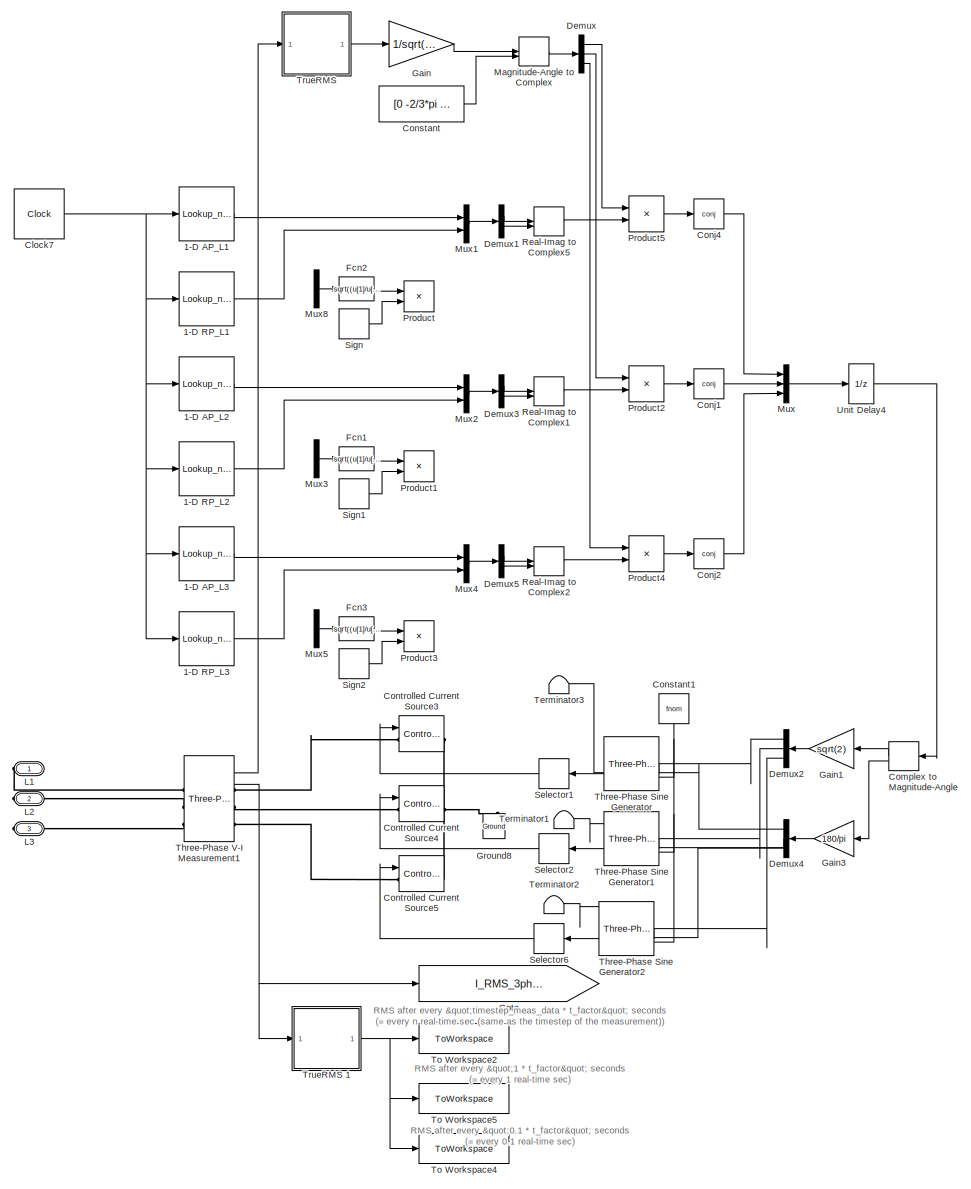
[diagram: SM_Master/Three-phase unsymmetrical Dynamic Load1 - part 1/1, most of the canvas]
BLOCK [SubSystem] SM_Master/Three-phase unsymmetrical Dynamic Load1
BLOCK [Lookup_n-D] SM_Master/Three-phase unsymmetrical Dynamic Load1/1-D AP_L1
  BreakpointsForDimension1 = t_factor * [0:timestep_meas_data:(Data_3ph_Pars.Time(datastop)-Data_3ph_Pars.Time(datastart))]'
  InputPortMap = u0
  InternalRulePriority = Speed
  InterpMethod = Flat
  NumberOfTableDimensions = 1
  RndMeth = Simplest
  Table = Data_3ph_Pars.ActivePowerL1(datastart:datastop)
BLOCK [Lookup_n-D] SM_Master/Three-phase unsymmetrical Dynamic Load1/1-D AP_L2
  BreakpointsForDimension1 = t_factor * [0:timestep_meas_data:(Data_3ph_Pars.Time(datastop)-Data_3ph_Pars.Time(datastart))]'
  InputPortMap = u0
  InternalRulePriority = Speed
  InterpMethod = Flat
  NumberOfTableDimensions = 1
  RndMeth = Simplest
  Table = Data_3ph_Pars.ActivePowerL2(datastart:datastop)
BLOCK [Lookup_n-D] SM_Master/Three-phase unsymmetrical Dynamic Load1/1-D AP_L3
  BreakpointsForDimension1 = t_factor * [0:timestep_meas_data:(Data_3ph_Pars.Time(datastop)-Data_3ph_Pars.Time(datastart))]'
  InputPortMap = u0
  InternalRulePriority = Speed
  InterpMethod = Flat
  NumberOfTableDimensions = 1
  RndMeth = Simplest
  Table = Data_3ph_Pars.ActivePowerL3(datastart:datastop)
BLOCK [Lookup_n-D] SM_Master/Three-phase unsymmetrical Dynamic Load1/1-D RP_L1
  BreakpointsForDimension1 = t_factor * [0:timestep_meas_data:(Data_3ph_Pars.Time(datastop)-Data_3ph_Pars.Time(datastart))]'
  InputPortMap = u0
  InternalRulePriority = Speed
  InterpMethod = Flat
  NumberOfTableDimensions = 1
  RndMeth = Simplest
  Table = Data_3ph_Pars.ReactivePowerL1(datastart:datastop)
BLOCK [Lookup_n-D] SM_Master/Three-phase unsymmetrical Dynamic Load1/1-D RP_L2
  BreakpointsForDimension1 = t_factor * [0:timestep_meas_data:(Data_3ph_Pars.Time(datastop)-Data_3ph_Pars.Time(datastart))]'
  InputPortMap = u0
  InternalRulePriority = Speed
  InterpMethod = Flat
  NumberOfTableDimensions = 1
  RndMeth = Simplest
  Table = Data_3ph_Pars.ReactivePowerL2(datastart:datastop)
BLOCK [Lookup_n-D] SM_Master/Three-phase unsymmetrical Dynamic Load1/1-D RP_L3
  BreakpointsForDimension1 = t_factor * [0:timestep_meas_data:(Data_3ph_Pars.Time(datastop)-Data_3ph_Pars.Time(datastart))]'
  InputPortMap = u0
  InternalRulePriority = Speed
  InterpMethod = Flat
  NumberOfTableDimensions = 1
  RndMeth = Simplest
  Table = Data_3ph_Pars.ReactivePowerL3(datastart:datastop)
BLOCK [Clock] SM_Master/Three-phase unsymmetrical Dynamic Load1/Clock7
  DisplayTime = on
BLOCK [ComplexToMagnitudeAngle] SM_Master/Three-phase unsymmetrical Dynamic Load1/Complex to Magnitude-Angle
  NameLocation = top
BLOCK [Math] SM_Master/Three-phase unsymmetrical Dynamic Load1/Conj1
  Operator = conj
  SignedPower = on
BLOCK [Math] SM_Master/Three-phase unsymmetrical Dynamic Load1/Conj2
  Operator = conj
  SignedPower = on
BLOCK [Math] SM_Master/Three-phase unsymmetrical Dynamic Load1/Conj4
  Operator = conj
  SignedPower = on
BLOCK [Constant] SM_Master/Three-phase unsymmetrical Dynamic Load1/Constant
  Value = [0 -2/3*pi -4/3*pi]
BLOCK [Constant] SM_Master/Three-phase unsymmetrical Dynamic Load1/Constant1
  NameLocation = left
  Value = fnom
BLOCK [Reference] SM_Master/Three-phase unsymmetrical Dynamic Load1/Controlled Current Source3  REF=spsControlledCurrentSourceLib/Controlled Current Source
  LibrarySourceBlock = sps_lib/Sources/Controlled Current Source
  SourceBlock = spsControlledCurrentSourceLib/Controlled Current Source
  SourceType = Controlled Current Source
BLOCK [Reference] SM_Master/Three-phase unsymmetrical Dynamic Load1/Controlled Current Source4  REF=spsControlledCurrentSourceLib/Controlled Current Source
  LibrarySourceBlock = sps_lib/Sources/Controlled Current Source
  SourceBlock = spsControlledCurrentSourceLib/Controlled Current Source
  SourceType = Controlled Current Source
BLOCK [Reference] SM_Master/Three-phase unsymmetrical Dynamic Load1/Controlled Current Source5  REF=spsControlledCurrentSourceLib/Controlled Current Source
  LibrarySourceBlock = sps_lib/Sources/Controlled Current Source
  SourceBlock = spsControlledCurrentSourceLib/Controlled Current Source
  SourceType = Controlled Current Source
BLOCK [Demux] SM_Master/Three-phase unsymmetrical Dynamic Load1/Demux
  Outputs = 3
BLOCK [Demux] SM_Master/Three-phase unsymmetrical Dynamic Load1/Demux1
  DisplayOption = none
  Outputs = 2
BLOCK [Demux] SM_Master/Three-phase unsymmetrical Dynamic Load1/Demux2
  NameLocation = top
  Outputs = 3
BLOCK [Demux] SM_Master/Three-phase unsymmetrical Dynamic Load1/Demux3
  DisplayOption = none
  Outputs = 2
BLOCK [Demux] SM_Master/Three-phase unsymmetrical Dynamic Load1/Demux4
  NameLocation = top
  Outputs = 3
BLOCK [Demux] SM_Master/Three-phase unsymmetrical Dynamic Load1/Demux5
  DisplayOption = none
  Outputs = 2
BLOCK [Fcn] SM_Master/Three-phase unsymmetrical Dynamic Load1/Fcn1
  Commented = on
  Expr = sqrt((u[1]/u[2])^2-u[1]^2)
BLOCK [Fcn] SM_Master/Three-phase unsymmetrical Dynamic Load1/Fcn2
  Commented = on
  Expr = sqrt((u[1]/u[2])^2-u[1]^2)
BLOCK [Fcn] SM_Master/Three-phase unsymmetrical Dynamic Load1/Fcn3
  Commented = on
  Expr = sqrt((u[1]/u[2])^2-u[1]^2)
BLOCK [Gain] SM_Master/Three-phase unsymmetrical Dynamic Load1/Gain
  Gain = 1/sqrt(3)
BLOCK [Gain] SM_Master/Three-phase unsymmetrical Dynamic Load1/Gain1
  Gain = sqrt(2)
  NameLocation = top
BLOCK [Gain] SM_Master/Three-phase unsymmetrical Dynamic Load1/Gain3
  Gain = 180/pi
  NameLocation = top
BLOCK [Goto] SM_Master/Three-phase unsymmetrical Dynamic Load1/Goto
  GotoTag = I_RMS_3ph_1sec
  TagVisibility = global
BLOCK [Reference] SM_Master/Three-phase unsymmetrical Dynamic Load1/Ground8  REF=spsGroundLib/Ground
  LibrarySourceBlock = sps_lib/Utilities/Ground
  NameLocation = right
  SourceBlock = spsGroundLib/Ground
  SourceType = Ground
BLOCK [PMIOPort] SM_Master/Three-phase unsymmetrical Dynamic Load1/L1
  NameLocation = top
  Side = Right
BLOCK [PMIOPort] SM_Master/Three-phase unsymmetrical Dynamic Load1/L2
  NameLocation = top
  Port = 2
  Side = Right
BLOCK [PMIOPort] SM_Master/Three-phase unsymmetrical Dynamic Load1/L3
  NameLocation = top
  Port = 3
  Side = Right
BLOCK [MagnitudeAngleToComplex] SM_Master/Three-phase unsymmetrical Dynamic Load1/Magnitude-Angle to Complex
BLOCK [Mux] SM_Master/Three-phase unsymmetrical Dynamic Load1/Mux
  DisplayOption = bar
  Inputs = 3
BLOCK [Mux] SM_Master/Three-phase unsymmetrical Dynamic Load1/Mux1
  DisplayOption = bar
  Inputs = 2
BLOCK [Mux] SM_Master/Three-phase unsymmetrical Dynamic Load1/Mux2
  DisplayOption = bar
  Inputs = 2
BLOCK [Mux] SM_Master/Three-phase unsymmetrical Dynamic Load1/Mux3
  Commented = on
  DisplayOption = bar
  Inputs = 2
BLOCK [Mux] SM_Master/Three-phase unsymmetrical Dynamic Load1/Mux4
  DisplayOption = bar
  Inputs = 2
BLOCK [Mux] SM_Master/Three-phase unsymmetrical Dynamic Load1/Mux5
  Commented = on
  DisplayOption = bar
  Inputs = 2
BLOCK [Mux] SM_Master/Three-phase unsymmetrical Dynamic Load1/Mux8
  Commented = on
  DisplayOption = bar
  Inputs = 2
BLOCK [Product] SM_Master/Three-phase unsymmetrical Dynamic Load1/Product
  Commented = on
BLOCK [Product] SM_Master/Three-phase unsymmetrical Dynamic Load1/Product1
  Commented = on
BLOCK [Product] SM_Master/Three-phase unsymmetrical Dynamic Load1/Product2
  InputSameDT = on
  Inputs = /*
  OutDataTypeStr = Inherit: Same as first input
  SaturateOnIntegerOverflow = on
BLOCK [Product] SM_Master/Three-phase unsymmetrical Dynamic Load1/Product3
  Commented = on
BLOCK [Product] SM_Master/Three-phase unsymmetrical Dynamic Load1/Product4
  InputSameDT = on
  Inputs = /*
  OutDataTypeStr = Inherit: Same as first input
  SaturateOnIntegerOverflow = on
BLOCK [Product] SM_Master/Three-phase unsymmetrical Dynamic Load1/Product5
  InputSameDT = on
  Inputs = /*
  OutDataTypeStr = Inherit: Same as first input
  SaturateOnIntegerOverflow = on
BLOCK [RealImagToComplex] SM_Master/Three-phase unsymmetrical Dynamic Load1/Real-Imag to Complex1
BLOCK [RealImagToComplex] SM_Master/Three-phase unsymmetrical Dynamic Load1/Real-Imag to Complex2
BLOCK [RealImagToComplex] SM_Master/Three-phase unsymmetrical Dynamic Load1/Real-Imag to Complex5
BLOCK [Selector] SM_Master/Three-phase unsymmetrical Dynamic Load1/Selector1
  IndexOptions = Index vector (dialog)
  Indices = 1
  InputPortWidth = 3
  NameLocation = top
  OutputSizes = 1
BLOCK [Selector] SM_Master/Three-phase unsymmetrical Dynamic Load1/Selector2
  IndexOptions = Index vector (dialog)
  Indices = 1
  InputPortWidth = 3
  NameLocation = top
  OutputSizes = 1
BLOCK [Selector] SM_Master/Three-phase unsymmetrical Dynamic Load1/Selector6
  IndexOptions = Index vector (dialog)
  Indices = 1
  InputPortWidth = 3
  NameLocation = top
  OutputSizes = 1
BLOCK [Signum] SM_Master/Three-phase unsymmetrical Dynamic Load1/Sign
  Commented = on
BLOCK [Signum] SM_Master/Three-phase unsymmetrical Dynamic Load1/Sign1
  Commented = on
BLOCK [Signum] SM_Master/Three-phase unsymmetrical Dynamic Load1/Sign2
  Commented = on
BLOCK [Terminator] SM_Master/Three-phase unsymmetrical Dynamic Load1/Terminator1
BLOCK [Terminator] SM_Master/Three-phase unsymmetrical Dynamic Load1/Terminator2
BLOCK [Terminator] SM_Master/Three-phase unsymmetrical Dynamic Load1/Terminator3
BLOCK [Reference] SM_Master/Three-phase unsymmetrical Dynamic Load1/Three-Phase Sine Generator  REF=spsThreePhaseSineGeneratorLib/Three-Phase
Sine Generator
  LibrarySourceBlock = sps_lib/Sources/Signal Generator Sources/Three-Phase\nSine Generator
  NameLocation = top
  SourceBlock = spsThreePhaseSineGeneratorLib/Three-Phase\nSine Generator
  SourceType = Three-phase Sine Generator
BLOCK [Reference] SM_Master/Three-phase unsymmetrical Dynamic Load1/Three-Phase Sine Generator1  REF=spsThreePhaseSineGeneratorLib/Three-Phase
Sine Generator
  LibrarySourceBlock = sps_lib/Sources/Signal Generator Sources/Three-Phase\nSine Generator
  NameLocation = top
  SourceBlock = spsThreePhaseSineGeneratorLib/Three-Phase\nSine Generator
  SourceType = Three-phase Sine Generator
BLOCK [Reference] SM_Master/Three-phase unsymmetrical Dynamic Load1/Three-Phase Sine Generator2  REF=spsThreePhaseSineGeneratorLib/Three-Phase
Sine Generator
  LibrarySourceBlock = sps_lib/Sources/Signal Generator Sources/Three-Phase\nSine Generator
  NameLocation = top
  SourceBlock = spsThreePhaseSineGeneratorLib/Three-Phase\nSine Generator
  SourceType = Three-phase Sine Generator
BLOCK [Reference] SM_Master/Three-phase unsymmetrical Dynamic Load1/Three-Phase V-I Measurement1  REF=spsThreePhaseVIMeasurementLib/Three-Phase
V-I Measurement
  LibrarySourceBlock = sps_lib/Sensors and Measurements/Three-Phase\nV-I Measurement
  SourceBlock = spsThreePhaseVIMeasurementLib/Three-Phase\nV-I Measurement
  SourceType = Three-Phase VI Measurement
BLOCK [ToWorkspace] SM_Master/Three-phase unsymmetrical Dynamic Load1/To Workspace2
  FixptAsFi = on
  MaxDataPoints = inf
  SampleTime = timestep_meas_data * t_factor
  VariableName = I_RMS_3ph_nsec
BLOCK [ToWorkspace] SM_Master/Three-phase unsymmetrical Dynamic Load1/To Workspace4
  FixptAsFi = on
  MaxDataPoints = inf
  SampleTime = 0.1 * t_factor
  VariableName = I_RMS_3ph_0_1sec
BLOCK [ToWorkspace] SM_Master/Three-phase unsymmetrical Dynamic Load1/To Workspace5
  Commented = on
  FixptAsFi = on
  MaxDataPoints = inf
  SampleTime = 1 * t_factor
  VariableName = I_RMS_3ph_1sec
BLOCK [SubSystem] SM_Master/Three-phase unsymmetrical Dynamic Load1/TrueRMS 
  AncestorBlock = powerlib_meascontrol/Measurements/RMS/TrueRMS
  ShowPortLabels = none
BLOCK [Inport] SM_Master/Three-phase unsymmetrical Dynamic Load1/TrueRMS /In
BLOCK [Reference] SM_Master/Three-phase unsymmetrical Dynamic Load1/TrueRMS /Mean value  REF=spsMeanLib/Mean
  LibrarySourceBlock = sps_lib/Sensors and Measurements/Mean
  SourceBlock = spsMeanLib/Mean
  SourceType = Mean
BLOCK [Product] SM_Master/Three-phase unsymmetrical Dynamic Load1/TrueRMS /Product
  InputSameDT = on
  OutDataTypeStr = Inherit: Same as first input
  SaturateOnIntegerOverflow = on
BLOCK [Outport] SM_Master/Three-phase unsymmetrical Dynamic Load1/TrueRMS /RMS
  VectorParamsAs1DForOutWhenUnconnected = off
BLOCK [Saturate] SM_Master/Three-phase unsymmetrical Dynamic Load1/TrueRMS /Saturation to avoid negative sqrt
  LowerLimit = 0
  UpperLimit = Inf
BLOCK [Sqrt] SM_Master/Three-phase unsymmetrical Dynamic Load1/TrueRMS /Sqrt
  AlgorithmType = Newton-Raphson
BLOCK [SubSystem] SM_Master/Three-phase unsymmetrical Dynamic Load1/TrueRMS 1
  AncestorBlock = powerlib_meascontrol/Measurements/RMS/TrueRMS
  ShowPortLabels = none
BLOCK [Inport] SM_Master/Three-phase unsymmetrical Dynamic Load1/TrueRMS 1/In
BLOCK [Reference] SM_Master/Three-phase unsymmetrical Dynamic Load1/TrueRMS 1/Mean value  REF=spsMeanLib/Mean
  LibrarySourceBlock = sps_lib/Sensors and Measurements/Mean
  SourceBlock = spsMeanLib/Mean
  SourceType = Mean
BLOCK [Product] SM_Master/Three-phase unsymmetrical Dynamic Load1/TrueRMS 1/Product
  InputSameDT = on
  OutDataTypeStr = Inherit: Same as first input
  SaturateOnIntegerOverflow = on
BLOCK [Outport] SM_Master/Three-phase unsymmetrical Dynamic Load1/TrueRMS 1/RMS
  VectorParamsAs1DForOutWhenUnconnected = off
BLOCK [Saturate] SM_Master/Three-phase unsymmetrical Dynamic Load1/TrueRMS 1/Saturation to avoid negative sqrt
  LowerLimit = 0
  UpperLimit = Inf
BLOCK [Sqrt] SM_Master/Three-phase unsymmetrical Dynamic Load1/TrueRMS 1/Sqrt
  AlgorithmType = Newton-Raphson
BLOCK [UnitDelay] SM_Master/Three-phase unsymmetrical Dynamic Load1/Unit Delay4
  HasFrameUpgradeWarning = on
  InitialCondition = 0*exp(-j*0*pi/180)
  NameLocation = top
  SampleTime = Ts
BLOCK [SubSystem] SM_Master/TrueRMS 1
  AncestorBlock = powerlib_meascontrol/Measurements/RMS/TrueRMS
  ShowPortLabels = none
BLOCK [Inport] SM_Master/TrueRMS 1/In
BLOCK [Reference] SM_Master/TrueRMS 1/Mean value  REF=spsMeanLib/Mean
  LibrarySourceBlock = sps_lib/Sensors and Measurements/Mean
  SourceBlock = spsMeanLib/Mean
  SourceType = Mean
BLOCK [Product] SM_Master/TrueRMS 1/Product
  InputSameDT = on
  OutDataTypeStr = Inherit: Same as first input
  SaturateOnIntegerOverflow = on
BLOCK [Outport] SM_Master/TrueRMS 1/RMS
  VectorParamsAs1DForOutWhenUnconnected = off
BLOCK [Saturate] SM_Master/TrueRMS 1/Saturation to avoid negative sqrt
  LowerLimit = 0
  UpperLimit = Inf
BLOCK [Sqrt] SM_Master/TrueRMS 1/Sqrt
  AlgorithmType = Newton-Raphson
BLOCK [Reference] powergui  REF=sps_lib/powergui
  LibrarySourceBlock = sps_lib/powergui
  Priority = 2
  SourceBlock = sps_lib/powergui
  SourceType = PSB option menu block
ANNOTATION SM_Master: '117-2_Cable1_phaseAB_Voltage' '117-2_Cable1_phaseBC_Voltage' '117-2_Cable1_phaseCA_Voltage'
ANNOTATION SM_Master: '319-2_Cable1_phaseAB_Voltage' '319-2_Cable1_phaseBC_Voltage' '319-2_Cable1_phaseCA_Voltage'
ANNOTATION SM_Master: '319-2_Dumpload_phaseAB_Voltage' '319-2_Dumpload_phaseBC_Voltage' '319-2_Dumpload_phaseCA_Voltage'
ANNOTATION SM_Master: '319-3_A2 to 319-2_phaseAB_Voltage' '319-3_A2 to 319-2_phaseBC_Voltage' '319-3_A2 to 319-2_phaseCA_Voltage'
ANNOTATION SM_Master: '319-3_B2 to 715-2_phaseAB_Voltage' '319-3_B2 to 715-2_phaseBC_Voltage' '319-3_B2 to 715-2_phaseCA_Voltage'
ANNOTATION SM_Master: '319-3_C2 to 117-2_phaseAB_Voltage' '319-3_C2 to 117-2_phaseBC_Voltage' '319-3_C2 to 117-2_phaseCA_Voltage'
ANNOTATION SM_Master: '715-2_CableF1_phaseAB_Voltage' '715-2_CableF1_phaseBC_Voltage' '715-2_CableF1_phaseCA_Voltage'
ANNOTATION SM_Master: '716-2_Cable E2_phaseAB_Voltage' '716-2_Cable E2_phaseBC_Voltage' '716-2_Cable E2_phaseCA_Voltage'
ANNOTATION SM_Master: Microgrid Model
ANNOTATION SM_Master: NOT: '319-2_Grid_phaseAB_Voltage' '319-2_Grid_phaseBC_Voltage' '319-2_Grid_phaseCA_Voltage'
ANNOTATION SM_Master: RT-Signals
ANNOTATION SM_Master: Topology
ANNOTATION SM_Master: line_param.C1.L_1 1.7160e-04
ANNOTATION SM_Master: line_param.C1.R_1 0.0854
ANNOTATION SM_Master: line_param.C1.Rs 0.1755
ANNOTATION SM_Master/Three-phase unsymmetrical Dynamic Load1: RMS after every "1 * t_factor" seconds (= every 1 real-time sec)
ANNOTATION SM_Master/Three-phase unsymmetrical Dynamic Load1: RMS after every "timestep_meas_data * t_factor" seconds (= every n real-time sec (same as the timestep of the measurement))
ANNOTATION SM_Master/Three-phase unsymmetrical Dynamic Load1: RMS after every "0.1 * t_factor" seconds (= every 0.1 real-time sec)
LINE SM_Master/1-D V_L1:1 -> SM_Master/Multiply1:1
LINE SM_Master/1-D V_L2:1 -> SM_Master/Multiply2:1
LINE SM_Master/1-D V_L3:1 -> SM_Master/Multiply3:1
NET SM_Master/Clock7:1 -> SM_Master/1-D V_L1:1, SM_Master/1-D V_L2:1, SM_Master/1-D V_L3:1
LINE SM_Master/Constant1:1 -> SM_Master/Three-Phase Sine Generator:3
LINE SM_Master/Constant2:1 -> SM_Master/Three-Phase Sine Generator1:2
LINE SM_Master/Constant3:1 -> SM_Master/Three-Phase Sine Generator1:3
LINE SM_Master/Constant4:1 -> SM_Master/Three-Phase Sine Generator2:2
LINE SM_Master/Constant5:1 -> SM_Master/Three-Phase Sine Generator2:3
LINE SM_Master/Constant:1 -> SM_Master/Three-Phase Sine Generator:2
LINE SM_Master/From12:1 -> SM_Master/Mux3:5
LINE SM_Master/From14:1 -> SM_Master/Mux3:4
LINE SM_Master/From19:1 -> SM_Master/Mux3:1
LINE SM_Master/From1:1 -> SM_Master/Mux3:7
LINE SM_Master/From20:1 -> SM_Master/Mux3:2
LINE SM_Master/From2:1 -> SM_Master/Mux3:6
LINE SM_Master/From3:1 -> SM_Master/Mux3:3
LINE SM_Master/From4:1 -> SM_Master/Mux3:9
LINE SM_Master/From5:1 -> SM_Master/Mux3:8
LINE SM_Master/Multiply1:1 -> SM_Master/Three-Phase Sine Generator:1
LINE SM_Master/Multiply2:1 -> SM_Master/Three-Phase Sine Generator1:1
LINE SM_Master/Multiply3:1 -> SM_Master/Three-Phase Sine Generator2:1
LINE SM_Master/Mux2:1 -> SM_Master/Terminator2:1
LINE SM_Master/Mux3:1 -> SM_Master/TrueRMS 1:1
LINE SM_Master/OpMonitor:1 -> SM_Master/Mux2:2
LINE SM_Master/OpWriteFile:1 -> SM_Master/Terminator:1
LINE SM_Master/OpWriteFile:2 -> SM_Master/Terminator1:1
LINE SM_Master/Selector1:1 -> SM_Master/Controlled Voltage Source1:1
LINE SM_Master/Selector2:1 -> SM_Master/Controlled Voltage Source2:1
LINE SM_Master/Selector3:1 -> SM_Master/Controlled Voltage Source:1
LINE SM_Master/Three-Phase Sine Generator1:1 -> SM_Master/Selector1:1
LINE SM_Master/Three-Phase Sine Generator1:2 -> SM_Master/Terminator4:1
LINE SM_Master/Three-Phase Sine Generator2:1 -> SM_Master/Selector2:1
LINE SM_Master/Three-Phase Sine Generator2:2 -> SM_Master/Terminator5:1
LINE SM_Master/Three-Phase Sine Generator:1 -> SM_Master/Selector3:1
LINE SM_Master/Three-Phase Sine Generator:2 -> SM_Master/Terminator3:1
LINE SM_Master/Three-phase unsymmetrical Dynamic Load1/1-D AP_L1:1 -> SM_Master/Three-phase unsymmetrical Dynamic Load1/Mux1:1
LINE SM_Master/Three-phase unsymmetrical Dynamic Load1/1-D AP_L2:1 -> SM_Master/Three-phase unsymmetrical Dynamic Load1/Mux2:1
LINE SM_Master/Three-phase unsymmetrical Dynamic Load1/1-D AP_L3:1 -> SM_Master/Three-phase unsymmetrical Dynamic Load1/Mux4:1
LINE SM_Master/Three-phase unsymmetrical Dynamic Load1/1-D RP_L1:1 -> SM_Master/Three-phase unsymmetrical Dynamic Load1/Mux1:2
LINE SM_Master/Three-phase unsymmetrical Dynamic Load1/1-D RP_L2:1 -> SM_Master/Three-phase unsymmetrical Dynamic Load1/Mux2:2
LINE SM_Master/Three-phase unsymmetrical Dynamic Load1/1-D RP_L3:1 -> SM_Master/Three-phase unsymmetrical Dynamic Load1/Mux4:2
NET SM_Master/Three-phase unsymmetrical Dynamic Load1/Clock7:1 -> SM_Master/Three-phase unsymmetrical Dynamic Load1/1-D AP_L1:1, SM_Master/Three-phase unsymmetrical Dynamic Load1/1-D AP_L2:1, SM_Master/Three-phase unsymmetrical Dynamic Load1/1-D AP_L3:1, SM_Master/Three-phase unsymmetrical Dynamic Load1/1-D RP_L1:1, SM_Master/Three-phase unsymmetrical Dynamic Load1/1-D RP_L2:1, SM_Master/Three-phase unsymmetrical Dynamic Load1/1-D RP_L3:1
LINE SM_Master/Three-phase unsymmetrical Dynamic Load1/Complex to Magnitude-Angle:1 -> SM_Master/Three-phase unsymmetrical Dynamic Load1/Gain1:1
LINE SM_Master/Three-phase unsymmetrical Dynamic Load1/Complex to Magnitude-Angle:2 -> SM_Master/Three-phase unsymmetrical Dynamic Load1/Gain3:1
LINE SM_Master/Three-phase unsymmetrical Dynamic Load1/Conj1:1 -> SM_Master/Three-phase unsymmetrical Dynamic Load1/Mux:2
LINE SM_Master/Three-phase unsymmetrical Dynamic Load1/Conj2:1 -> SM_Master/Three-phase unsymmetrical Dynamic Load1/Mux:3
LINE SM_Master/Three-phase unsymmetrical Dynamic Load1/Conj4:1 -> SM_Master/Three-phase unsymmetrical Dynamic Load1/Mux:1
NET SM_Master/Three-phase unsymmetrical Dynamic Load1/Constant1:1 -> SM_Master/Three-phase unsymmetrical Dynamic Load1/Three-Phase Sine Generator1:3, SM_Master/Three-phase unsymmetrical Dynamic Load1/Three-Phase Sine Generator2:3, SM_Master/Three-phase unsymmetrical Dynamic Load1/Three-Phase Sine Generator:3
LINE SM_Master/Three-phase unsymmetrical Dynamic Load1/Constant:1 -> SM_Master/Three-phase unsymmetrical Dynamic Load1/Magnitude-Angle to Complex:2
LINE SM_Master/Three-phase unsymmetrical Dynamic Load1/Demux1:1 -> SM_Master/Three-phase unsymmetrical Dynamic Load1/Real-Imag to Complex5:1
LINE SM_Master/Three-phase unsymmetrical Dynamic Load1/Demux1:2 -> SM_Master/Three-phase unsymmetrical Dynamic Load1/Real-Imag to Complex5:2
LINE SM_Master/Three-phase unsymmetrical Dynamic Load1/Demux2:1 -> SM_Master/Three-phase unsymmetrical Dynamic Load1/Three-Phase Sine Generator:1
LINE SM_Master/Three-phase unsymmetrical Dynamic Load1/Demux2:2 -> SM_Master/Three-phase unsymmetrical Dynamic Load1/Three-Phase Sine Generator1:1
LINE SM_Master/Three-phase unsymmetrical Dynamic Load1/Demux2:3 -> SM_Master/Three-phase unsymmetrical Dynamic Load1/Three-Phase Sine Generator2:1
LINE SM_Master/Three-phase unsymmetrical Dynamic Load1/Demux3:1 -> SM_Master/Three-phase unsymmetrical Dynamic Load1/Real-Imag to Complex1:1
LINE SM_Master/Three-phase unsymmetrical Dynamic Load1/Demux3:2 -> SM_Master/Three-phase unsymmetrical Dynamic Load1/Real-Imag to Complex1:2
LINE SM_Master/Three-phase unsymmetrical Dynamic Load1/Demux4:1 -> SM_Master/Three-phase unsymmetrical Dynamic Load1/Three-Phase Sine Generator:2
LINE SM_Master/Three-phase unsymmetrical Dynamic Load1/Demux4:2 -> SM_Master/Three-phase unsymmetrical Dynamic Load1/Three-Phase Sine Generator1:2
LINE SM_Master/Three-phase unsymmetrical Dynamic Load1/Demux4:3 -> SM_Master/Three-phase unsymmetrical Dynamic Load1/Three-Phase Sine Generator2:2
LINE SM_Master/Three-phase unsymmetrical Dynamic Load1/Demux5:1 -> SM_Master/Three-phase unsymmetrical Dynamic Load1/Real-Imag to Complex2:1
LINE SM_Master/Three-phase unsymmetrical Dynamic Load1/Demux5:2 -> SM_Master/Three-phase unsymmetrical Dynamic Load1/Real-Imag to Complex2:2
LINE SM_Master/Three-phase unsymmetrical Dynamic Load1/Demux:1 -> SM_Master/Three-phase unsymmetrical Dynamic Load1/Product5:1
LINE SM_Master/Three-phase unsymmetrical Dynamic Load1/Demux:2 -> SM_Master/Three-phase unsymmetrical Dynamic Load1/Product2:1
LINE SM_Master/Three-phase unsymmetrical Dynamic Load1/Demux:3 -> SM_Master/Three-phase unsymmetrical Dynamic Load1/Product4:1
LINE SM_Master/Three-phase unsymmetrical Dynamic Load1/Fcn1:1 -> SM_Master/Three-phase unsymmetrical Dynamic Load1/Product1:1
LINE SM_Master/Three-phase unsymmetrical Dynamic Load1/Fcn2:1 -> SM_Master/Three-phase unsymmetrical Dynamic Load1/Product:1
LINE SM_Master/Three-phase unsymmetrical Dynamic Load1/Fcn3:1 -> SM_Master/Three-phase unsymmetrical Dynamic Load1/Product3:1
LINE SM_Master/Three-phase unsymmetrical Dynamic Load1/Gain1:1 -> SM_Master/Three-phase unsymmetrical Dynamic Load1/Demux2:1
LINE SM_Master/Three-phase unsymmetrical Dynamic Load1/Gain3:1 -> SM_Master/Three-phase unsymmetrical Dynamic Load1/Demux4:1
LINE SM_Master/Three-phase unsymmetrical Dynamic Load1/Gain:1 -> SM_Master/Three-phase unsymmetrical Dynamic Load1/Magnitude-Angle to Complex:1
LINE SM_Master/Three-phase unsymmetrical Dynamic Load1/Magnitude-Angle to Complex:1 -> SM_Master/Three-phase unsymmetrical Dynamic Load1/Demux:1
LINE SM_Master/Three-phase unsymmetrical Dynamic Load1/Mux1:1 -> SM_Master/Three-phase unsymmetrical Dynamic Load1/Demux1:1
LINE SM_Master/Three-phase unsymmetrical Dynamic Load1/Mux2:1 -> SM_Master/Three-phase unsymmetrical Dynamic Load1/Demux3:1
LINE SM_Master/Three-phase unsymmetrical Dynamic Load1/Mux3:1 -> SM_Master/Three-phase unsymmetrical Dynamic Load1/Fcn1:1
LINE SM_Master/Three-phase unsymmetrical Dynamic Load1/Mux4:1 -> SM_Master/Three-phase unsymmetrical Dynamic Load1/Demux5:1
LINE SM_Master/Three-phase unsymmetrical Dynamic Load1/Mux5:1 -> SM_Master/Three-phase unsymmetrical Dynamic Load1/Fcn3:1
LINE SM_Master/Three-phase unsymmetrical Dynamic Load1/Mux8:1 -> SM_Master/Three-phase unsymmetrical Dynamic Load1/Fcn2:1
LINE SM_Master/Three-phase unsymmetrical Dynamic Load1/Mux:1 -> SM_Master/Three-phase unsymmetrical Dynamic Load1/Unit Delay4:1
LINE SM_Master/Three-phase unsymmetrical Dynamic Load1/Product2:1 -> SM_Master/Three-phase unsymmetrical Dynamic Load1/Conj1:1
LINE SM_Master/Three-phase unsymmetrical Dynamic Load1/Product4:1 -> SM_Master/Three-phase unsymmetrical Dynamic Load1/Conj2:1
LINE SM_Master/Three-phase unsymmetrical Dynamic Load1/Product5:1 -> SM_Master/Three-phase unsymmetrical Dynamic Load1/Conj4:1
LINE SM_Master/Three-phase unsymmetrical Dynamic Load1/Real-Imag to Complex1:1 -> SM_Master/Three-phase unsymmetrical Dynamic Load1/Product2:2
LINE SM_Master/Three-phase unsymmetrical Dynamic Load1/Real-Imag to Complex2:1 -> SM_Master/Three-phase unsymmetrical Dynamic Load1/Product4:2
LINE SM_Master/Three-phase unsymmetrical Dynamic Load1/Real-Imag to Complex5:1 -> SM_Master/Three-phase unsymmetrical Dynamic Load1/Product5:2
LINE SM_Master/Three-phase unsymmetrical Dynamic Load1/Selector1:1 -> SM_Master/Three-phase unsymmetrical Dynamic Load1/Controlled Current Source3:1
LINE SM_Master/Three-phase unsymmetrical Dynamic Load1/Selector2:1 -> SM_Master/Three-phase unsymmetrical Dynamic Load1/Controlled Current Source4:1
LINE SM_Master/Three-phase unsymmetrical Dynamic Load1/Selector6:1 -> SM_Master/Three-phase unsymmetrical Dynamic Load1/Controlled Current Source5:1
LINE SM_Master/Three-phase unsymmetrical Dynamic Load1/Sign1:1 -> SM_Master/Three-phase unsymmetrical Dynamic Load1/Product1:2
LINE SM_Master/Three-phase unsymmetrical Dynamic Load1/Sign2:1 -> SM_Master/Three-phase unsymmetrical Dynamic Load1/Product3:2
LINE SM_Master/Three-phase unsymmetrical Dynamic Load1/Sign:1 -> SM_Master/Three-phase unsymmetrical Dynamic Load1/Product:2
LINE SM_Master/Three-phase unsymmetrical Dynamic Load1/Three-Phase Sine Generator1:1 -> SM_Master/Three-phase unsymmetrical Dynamic Load1/Selector2:1
LINE SM_Master/Three-phase unsymmetrical Dynamic Load1/Three-Phase Sine Generator1:2 -> SM_Master/Three-phase unsymmetrical Dynamic Load1/Terminator1:1
LINE SM_Master/Three-phase unsymmetrical Dynamic Load1/Three-Phase Sine Generator2:1 -> SM_Master/Three-phase unsymmetrical Dynamic Load1/Selector6:1
LINE SM_Master/Three-phase unsymmetrical Dynamic Load1/Three-Phase Sine Generator2:2 -> SM_Master/Three-phase unsymmetrical Dynamic Load1/Terminator2:1
LINE SM_Master/Three-phase unsymmetrical Dynamic Load1/Three-Phase Sine Generator:1 -> SM_Master/Three-phase unsymmetrical Dynamic Load1/Selector1:1
LINE SM_Master/Three-phase unsymmetrical Dynamic Load1/Three-Phase Sine Generator:2 -> SM_Master/Three-phase unsymmetrical Dynamic Load1/Terminator3:1
LINE SM_Master/Three-phase unsymmetrical Dynamic Load1/Three-Phase V-I Measurement1:1 -> SM_Master/Three-phase unsymmetrical Dynamic Load1/TrueRMS :1
NET SM_Master/Three-phase unsymmetrical Dynamic Load1/Three-Phase V-I Measurement1:2 -> SM_Master/Three-phase unsymmetrical Dynamic Load1/Goto:1, SM_Master/Three-phase unsymmetrical Dynamic Load1/TrueRMS 1:1
NET SM_Master/Three-phase unsymmetrical Dynamic Load1/TrueRMS 1:1 -> SM_Master/Three-phase unsymmetrical Dynamic Load1/To Workspace2:1, SM_Master/Three-phase unsymmetrical Dynamic Load1/To Workspace4:1, SM_Master/Three-phase unsymmetrical Dynamic Load1/To Workspace5:1
LINE SM_Master/Three-phase unsymmetrical Dynamic Load1/TrueRMS :1 -> SM_Master/Three-phase unsymmetrical Dynamic Load1/Gain:1
LINE SM_Master/Three-phase unsymmetrical Dynamic Load1/Unit Delay4:1 -> SM_Master/Three-phase unsymmetrical Dynamic Load1/Complex to Magnitude-Angle:1
NET SM_Master/TrueRMS 1:1 -> SM_Master/Mux2:1, SM_Master/OpWriteFile:1
PLINE SM_Master/B1:LConn1 -- SM_Master/Cable A1_1:RConn1
PLINE SM_Master/B1:LConn2 -- SM_Master/Cable A1_1:RConn2
PLINE SM_Master/B1:LConn3 -- SM_Master/Cable A1_1:RConn3
PLINE SM_Master/B1:RConn1 -- SM_Master/Cable B2_1:LConn1
PLINE SM_Master/B1:RConn2 -- SM_Master/Cable B2_1:LConn2
PLINE SM_Master/B1:RConn3 -- SM_Master/Cable B2_1:LConn3
PLINE SM_Master/B1_afterC1:LConn1 -- SM_Master/Three-Phase Series RLC Branch:RConn1
PLINE SM_Master/B1_afterC1:LConn2 -- SM_Master/Three-Phase Series RLC Branch:RConn2
PLINE SM_Master/B1_afterC1:LConn3 -- SM_Master/Three-Phase Series RLC Branch:RConn3
PLINE SM_Master/B1_afterC1:RConn1 -- SM_Master/B6:LConn1
PLINE SM_Master/B1_afterC1:RConn2 -- SM_Master/B6:LConn2
PLINE SM_Master/B1_afterC1:RConn3 -- SM_Master/B6:LConn3
PLINE SM_Master/B1_beforeC1:LConn1 -- SM_Master/B5:RConn1
PLINE SM_Master/B1_beforeC1:LConn2 -- SM_Master/B5:RConn2
PLINE SM_Master/B1_beforeC1:LConn3 -- SM_Master/B5:RConn3
PLINE SM_Master/B1_beforeC1:RConn1 -- SM_Master/Three-Phase Series RLC Branch:LConn1
PLINE SM_Master/B1_beforeC1:RConn2 -- SM_Master/Three-Phase Series RLC Branch:LConn2
PLINE SM_Master/B1_beforeC1:RConn3 -- SM_Master/Three-Phase Series RLC Branch:LConn3
PLINE SM_Master/B2:LConn1 -- SM_Master/Cable B2_1:RConn1
PLINE SM_Master/B2:LConn2 -- SM_Master/Cable B2_1:RConn2
PLINE SM_Master/B2:LConn3 -- SM_Master/Cable B2_1:RConn3
PLINE SM_Master/B2:RConn1 -- SM_Master/Cable F1_1:LConn1
PLINE SM_Master/B2:RConn2 -- SM_Master/Cable F1_1:LConn2
PLINE SM_Master/B2:RConn3 -- SM_Master/Cable F1_1:LConn3
PLINE SM_Master/B3:LConn1 -- SM_Master/Cable F1_1:RConn1
PLINE SM_Master/B3:LConn2 -- SM_Master/Cable F1_1:RConn2
PLINE SM_Master/B3:LConn3 -- SM_Master/Cable F1_1:RConn3
PLINE SM_Master/B3:RConn1 -- SM_Master/Cable E2_1:LConn1
PLINE SM_Master/B3:RConn2 -- SM_Master/Cable E2_1:LConn2
PLINE SM_Master/B3:RConn3 -- SM_Master/Cable E2_1:LConn3
PLINE SM_Master/B4:LConn1 -- SM_Master/Cable E2_1:RConn1
PLINE SM_Master/B4:LConn2 -- SM_Master/Cable E2_1:RConn2
PLINE SM_Master/B4:LConn3 -- SM_Master/Cable E2_1:RConn3
PLINE SM_Master/B4:RConn1 -- SM_Master/Cable C2_1:LConn1
PLINE SM_Master/B4:RConn2 -- SM_Master/Cable C2_1:LConn2
PLINE SM_Master/B4:RConn3 -- SM_Master/Cable C2_1:LConn3
PLINE SM_Master/B5:LConn1 -- SM_Master/Cable C2_1:RConn1
PLINE SM_Master/B5:LConn2 -- SM_Master/Cable C2_1:RConn2
PLINE SM_Master/B5:LConn3 -- SM_Master/Cable C2_1:RConn3
PLINE SM_Master/B6:RConn1 -- SM_Master/Cable A2_1:LConn1
PLINE SM_Master/B6:RConn2 -- SM_Master/Cable A2_1:LConn2
PLINE SM_Master/B6:RConn3 -- SM_Master/Cable A2_1:LConn3
PLINE SM_Master/B7:LConn1 -- SM_Master/Cable A2_1:RConn1
PLINE SM_Master/B7:LConn2 -- SM_Master/Cable A2_1:RConn2
PLINE SM_Master/B7:LConn3 -- SM_Master/Cable A2_1:RConn3
PNET net1: SM_Master/B7:RConn1 -- SM_Master/Series RLC Branch5:LConn1 -- SM_Master/Three-phase unsymmetrical Dynamic Load1:RConn1
PNET net2: SM_Master/B7:RConn2 -- SM_Master/Series RLC Branch4:LConn1 -- SM_Master/Three-phase unsymmetrical Dynamic Load1:RConn2
PNET net3: SM_Master/B7:RConn3 -- SM_Master/Series RLC Branch3:LConn1 -- SM_Master/Three-phase unsymmetrical Dynamic Load1:RConn3
PLINE SM_Master/BG1:LConn1 -- SM_Master/Series RLC Branch:RConn1
PLINE SM_Master/BG1:LConn2 -- SM_Master/Series RLC Branch1:RConn1
PLINE SM_Master/BG1:LConn3 -- SM_Master/Series RLC Branch2:RConn1
PLINE SM_Master/BG1:RConn1 -- SM_Master/Cable A1_1:LConn1
PLINE SM_Master/BG1:RConn2 -- SM_Master/Cable A1_1:LConn2
PLINE SM_Master/BG1:RConn3 -- SM_Master/Cable A1_1:LConn3
PNET net4: SM_Master/Cable A1_1/Config301:LConn1 -- SM_Master/Cable A1_1/Series RLC Branch11:LConn1 -- SM_Master/Cable A1_1/Series RLC Branch3:LConn1 -- SM_Master/Cable A1_1/Series RLC Branch9:LConn1 -- SM_Master/Cable A1_1/a:RConn1
PNET net5: SM_Master/Cable A1_1/Config301:LConn2 -- SM_Master/Cable A1_1/Series RLC Branch10:LConn1 -- SM_Master/Cable A1_1/Series RLC Branch4:LConn1 -- SM_Master/Cable A1_1/Series RLC Branch9:RConn1 -- SM_Master/Cable A1_1/b:RConn1
PNET net6: SM_Master/Cable A1_1/Config301:LConn3 -- SM_Master/Cable A1_1/Series RLC Branch10:RConn1 -- SM_Master/Cable A1_1/Series RLC Branch11:RConn1 -- SM_Master/Cable A1_1/Series RLC Branch5:LConn1 -- SM_Master/Cable A1_1/c:RConn1
PNET net7: SM_Master/Cable A1_1/Config301:RConn1 -- SM_Master/Cable A1_1/Series RLC Branch2:LConn1 -- SM_Master/Cable A1_1/Series RLC Branch7:LConn1 -- SM_Master/Cable A1_1/Series RLC Branch8:LConn1 -- SM_Master/Cable A1_1/a :RConn1
PNET net8: SM_Master/Cable A1_1/Config301:RConn2 -- SM_Master/Cable A1_1/Series RLC Branch1:LConn1 -- SM_Master/Cable A1_1/Series RLC Branch6:LConn1 -- SM_Master/Cable A1_1/Series RLC Branch7:RConn1 -- SM_Master/Cable A1_1/b :RConn1
PNET net9: SM_Master/Cable A1_1/Config301:RConn3 -- SM_Master/Cable A1_1/Series RLC Branch6:RConn1 -- SM_Master/Cable A1_1/Series RLC Branch8:RConn1 -- SM_Master/Cable A1_1/Series RLC Branch:LConn1 -- SM_Master/Cable A1_1/c :RConn1
PLINE SM_Master/Cable A1_1/Ground1:LConn1 -- SM_Master/Cable A1_1/Series RLC Branch1:RConn1
PLINE SM_Master/Cable A1_1/Ground2:LConn1 -- SM_Master/Cable A1_1/Series RLC Branch2:RConn1
PLINE SM_Master/Cable A1_1/Ground3:LConn1 -- SM_Master/Cable A1_1/Series RLC Branch3:RConn1
PLINE SM_Master/Cable A1_1/Ground4:LConn1 -- SM_Master/Cable A1_1/Series RLC Branch4:RConn1
PLINE SM_Master/Cable A1_1/Ground5:LConn1 -- SM_Master/Cable A1_1/Series RLC Branch5:RConn1
PLINE SM_Master/Cable A1_1/Ground:LConn1 -- SM_Master/Cable A1_1/Series RLC Branch:RConn1
PNET net10: SM_Master/Cable A2_1/Config301:LConn1 -- SM_Master/Cable A2_1/Series RLC Branch11:LConn1 -- SM_Master/Cable A2_1/Series RLC Branch3:LConn1 -- SM_Master/Cable A2_1/Series RLC Branch9:LConn1 -- SM_Master/Cable A2_1/a:RConn1
PNET net11: SM_Master/Cable A2_1/Config301:LConn2 -- SM_Master/Cable A2_1/Series RLC Branch10:LConn1 -- SM_Master/Cable A2_1/Series RLC Branch4:LConn1 -- SM_Master/Cable A2_1/Series RLC Branch9:RConn1 -- SM_Master/Cable A2_1/b:RConn1
PNET net12: SM_Master/Cable A2_1/Config301:LConn3 -- SM_Master/Cable A2_1/Series RLC Branch10:RConn1 -- SM_Master/Cable A2_1/Series RLC Branch11:RConn1 -- SM_Master/Cable A2_1/Series RLC Branch5:LConn1 -- SM_Master/Cable A2_1/c:RConn1
PNET net13: SM_Master/Cable A2_1/Config301:RConn1 -- SM_Master/Cable A2_1/Series RLC Branch2:LConn1 -- SM_Master/Cable A2_1/Series RLC Branch7:LConn1 -- SM_Master/Cable A2_1/Series RLC Branch8:LConn1 -- SM_Master/Cable A2_1/a :RConn1
PNET net14: SM_Master/Cable A2_1/Config301:RConn2 -- SM_Master/Cable A2_1/Series RLC Branch1:LConn1 -- SM_Master/Cable A2_1/Series RLC Branch6:LConn1 -- SM_Master/Cable A2_1/Series RLC Branch7:RConn1 -- SM_Master/Cable A2_1/b :RConn1
PNET net15: SM_Master/Cable A2_1/Config301:RConn3 -- SM_Master/Cable A2_1/Series RLC Branch6:RConn1 -- SM_Master/Cable A2_1/Series RLC Branch8:RConn1 -- SM_Master/Cable A2_1/Series RLC Branch:LConn1 -- SM_Master/Cable A2_1/c :RConn1
PLINE SM_Master/Cable A2_1/Ground1:LConn1 -- SM_Master/Cable A2_1/Series RLC Branch1:RConn1
PLINE SM_Master/Cable A2_1/Ground2:LConn1 -- SM_Master/Cable A2_1/Series RLC Branch2:RConn1
PLINE SM_Master/Cable A2_1/Ground3:LConn1 -- SM_Master/Cable A2_1/Series RLC Branch3:RConn1
PLINE SM_Master/Cable A2_1/Ground4:LConn1 -- SM_Master/Cable A2_1/Series RLC Branch4:RConn1
PLINE SM_Master/Cable A2_1/Ground5:LConn1 -- SM_Master/Cable A2_1/Series RLC Branch5:RConn1
PLINE SM_Master/Cable A2_1/Ground:LConn1 -- SM_Master/Cable A2_1/Series RLC Branch:RConn1
PNET net16: SM_Master/Cable B2_1/Config301:LConn1 -- SM_Master/Cable B2_1/Series RLC Branch11:LConn1 -- SM_Master/Cable B2_1/Series RLC Branch3:LConn1 -- SM_Master/Cable B2_1/Series RLC Branch9:LConn1 -- SM_Master/Cable B2_1/a:RConn1
PNET net17: SM_Master/Cable B2_1/Config301:LConn2 -- SM_Master/Cable B2_1/Series RLC Branch10:LConn1 -- SM_Master/Cable B2_1/Series RLC Branch4:LConn1 -- SM_Master/Cable B2_1/Series RLC Branch9:RConn1 -- SM_Master/Cable B2_1/b:RConn1
PNET net18: SM_Master/Cable B2_1/Config301:LConn3 -- SM_Master/Cable B2_1/Series RLC Branch10:RConn1 -- SM_Master/Cable B2_1/Series RLC Branch11:RConn1 -- SM_Master/Cable B2_1/Series RLC Branch5:LConn1 -- SM_Master/Cable B2_1/c:RConn1
PNET net19: SM_Master/Cable B2_1/Config301:RConn1 -- SM_Master/Cable B2_1/Series RLC Branch2:LConn1 -- SM_Master/Cable B2_1/Series RLC Branch7:LConn1 -- SM_Master/Cable B2_1/Series RLC Branch8:LConn1 -- SM_Master/Cable B2_1/a :RConn1
PNET net20: SM_Master/Cable B2_1/Config301:RConn2 -- SM_Master/Cable B2_1/Series RLC Branch1:LConn1 -- SM_Master/Cable B2_1/Series RLC Branch6:LConn1 -- SM_Master/Cable B2_1/Series RLC Branch7:RConn1 -- SM_Master/Cable B2_1/b :RConn1
PNET net21: SM_Master/Cable B2_1/Config301:RConn3 -- SM_Master/Cable B2_1/Series RLC Branch6:RConn1 -- SM_Master/Cable B2_1/Series RLC Branch8:RConn1 -- SM_Master/Cable B2_1/Series RLC Branch:LConn1 -- SM_Master/Cable B2_1/c :RConn1
PLINE SM_Master/Cable B2_1/Ground1:LConn1 -- SM_Master/Cable B2_1/Series RLC Branch1:RConn1
PLINE SM_Master/Cable B2_1/Ground2:LConn1 -- SM_Master/Cable B2_1/Series RLC Branch2:RConn1
PLINE SM_Master/Cable B2_1/Ground3:LConn1 -- SM_Master/Cable B2_1/Series RLC Branch3:RConn1
PLINE SM_Master/Cable B2_1/Ground4:LConn1 -- SM_Master/Cable B2_1/Series RLC Branch4:RConn1
PLINE SM_Master/Cable B2_1/Ground5:LConn1 -- SM_Master/Cable B2_1/Series RLC Branch5:RConn1
PLINE SM_Master/Cable B2_1/Ground:LConn1 -- SM_Master/Cable B2_1/Series RLC Branch:RConn1
PNET net22: SM_Master/Cable C1_1/Config301:LConn1 -- SM_Master/Cable C1_1/Series RLC Branch11:LConn1 -- SM_Master/Cable C1_1/Series RLC Branch3:LConn1 -- SM_Master/Cable C1_1/Series RLC Branch9:LConn1 -- SM_Master/Cable C1_1/a:RConn1
PNET net23: SM_Master/Cable C1_1/Config301:LConn2 -- SM_Master/Cable C1_1/Series RLC Branch10:LConn1 -- SM_Master/Cable C1_1/Series RLC Branch4:LConn1 -- SM_Master/Cable C1_1/Series RLC Branch9:RConn1 -- SM_Master/Cable C1_1/b:RConn1
PNET net24: SM_Master/Cable C1_1/Config301:LConn3 -- SM_Master/Cable C1_1/Series RLC Branch10:RConn1 -- SM_Master/Cable C1_1/Series RLC Branch11:RConn1 -- SM_Master/Cable C1_1/Series RLC Branch5:LConn1 -- SM_Master/Cable C1_1/c:RConn1
PNET net25: SM_Master/Cable C1_1/Config301:RConn1 -- SM_Master/Cable C1_1/Series RLC Branch2:LConn1 -- SM_Master/Cable C1_1/Series RLC Branch7:LConn1 -- SM_Master/Cable C1_1/Series RLC Branch8:LConn1 -- SM_Master/Cable C1_1/a :RConn1
PNET net26: SM_Master/Cable C1_1/Config301:RConn2 -- SM_Master/Cable C1_1/Series RLC Branch1:LConn1 -- SM_Master/Cable C1_1/Series RLC Branch6:LConn1 -- SM_Master/Cable C1_1/Series RLC Branch7:RConn1 -- SM_Master/Cable C1_1/b :RConn1
PNET net27: SM_Master/Cable C1_1/Config301:RConn3 -- SM_Master/Cable C1_1/Series RLC Branch6:RConn1 -- SM_Master/Cable C1_1/Series RLC Branch8:RConn1 -- SM_Master/Cable C1_1/Series RLC Branch:LConn1 -- SM_Master/Cable C1_1/c :RConn1
PLINE SM_Master/Cable C1_1/Ground1:LConn1 -- SM_Master/Cable C1_1/Series RLC Branch1:RConn1
PLINE SM_Master/Cable C1_1/Ground2:LConn1 -- SM_Master/Cable C1_1/Series RLC Branch2:RConn1
PLINE SM_Master/Cable C1_1/Ground3:LConn1 -- SM_Master/Cable C1_1/Series RLC Branch3:RConn1
PLINE SM_Master/Cable C1_1/Ground4:LConn1 -- SM_Master/Cable C1_1/Series RLC Branch4:RConn1
PLINE SM_Master/Cable C1_1/Ground5:LConn1 -- SM_Master/Cable C1_1/Series RLC Branch5:RConn1
PLINE SM_Master/Cable C1_1/Ground:LConn1 -- SM_Master/Cable C1_1/Series RLC Branch:RConn1
PNET net28: SM_Master/Cable C2_1/Config301:LConn1 -- SM_Master/Cable C2_1/Series RLC Branch11:LConn1 -- SM_Master/Cable C2_1/Series RLC Branch3:LConn1 -- SM_Master/Cable C2_1/Series RLC Branch9:LConn1 -- SM_Master/Cable C2_1/a:RConn1
PNET net29: SM_Master/Cable C2_1/Config301:LConn2 -- SM_Master/Cable C2_1/Series RLC Branch10:LConn1 -- SM_Master/Cable C2_1/Series RLC Branch4:LConn1 -- SM_Master/Cable C2_1/Series RLC Branch9:RConn1 -- SM_Master/Cable C2_1/b:RConn1
PNET net30: SM_Master/Cable C2_1/Config301:LConn3 -- SM_Master/Cable C2_1/Series RLC Branch10:RConn1 -- SM_Master/Cable C2_1/Series RLC Branch11:RConn1 -- SM_Master/Cable C2_1/Series RLC Branch5:LConn1 -- SM_Master/Cable C2_1/c:RConn1
PNET net31: SM_Master/Cable C2_1/Config301:RConn1 -- SM_Master/Cable C2_1/Series RLC Branch2:LConn1 -- SM_Master/Cable C2_1/Series RLC Branch7:LConn1 -- SM_Master/Cable C2_1/Series RLC Branch8:LConn1 -- SM_Master/Cable C2_1/a :RConn1
PNET net32: SM_Master/Cable C2_1/Config301:RConn2 -- SM_Master/Cable C2_1/Series RLC Branch1:LConn1 -- SM_Master/Cable C2_1/Series RLC Branch6:LConn1 -- SM_Master/Cable C2_1/Series RLC Branch7:RConn1 -- SM_Master/Cable C2_1/b :RConn1
PNET net33: SM_Master/Cable C2_1/Config301:RConn3 -- SM_Master/Cable C2_1/Series RLC Branch6:RConn1 -- SM_Master/Cable C2_1/Series RLC Branch8:RConn1 -- SM_Master/Cable C2_1/Series RLC Branch:LConn1 -- SM_Master/Cable C2_1/c :RConn1
PLINE SM_Master/Cable C2_1/Ground1:LConn1 -- SM_Master/Cable C2_1/Series RLC Branch1:RConn1
PLINE SM_Master/Cable C2_1/Ground2:LConn1 -- SM_Master/Cable C2_1/Series RLC Branch2:RConn1
PLINE SM_Master/Cable C2_1/Ground3:LConn1 -- SM_Master/Cable C2_1/Series RLC Branch3:RConn1
PLINE SM_Master/Cable C2_1/Ground4:LConn1 -- SM_Master/Cable C2_1/Series RLC Branch4:RConn1
PLINE SM_Master/Cable C2_1/Ground5:LConn1 -- SM_Master/Cable C2_1/Series RLC Branch5:RConn1
PLINE SM_Master/Cable C2_1/Ground:LConn1 -- SM_Master/Cable C2_1/Series RLC Branch:RConn1
PNET net34: SM_Master/Cable E2_1/Config301:LConn1 -- SM_Master/Cable E2_1/Series RLC Branch11:LConn1 -- SM_Master/Cable E2_1/Series RLC Branch3:LConn1 -- SM_Master/Cable E2_1/Series RLC Branch9:LConn1 -- SM_Master/Cable E2_1/a:RConn1
PNET net35: SM_Master/Cable E2_1/Config301:LConn2 -- SM_Master/Cable E2_1/Series RLC Branch10:LConn1 -- SM_Master/Cable E2_1/Series RLC Branch4:LConn1 -- SM_Master/Cable E2_1/Series RLC Branch9:RConn1 -- SM_Master/Cable E2_1/b:RConn1
PNET net36: SM_Master/Cable E2_1/Config301:LConn3 -- SM_Master/Cable E2_1/Series RLC Branch10:RConn1 -- SM_Master/Cable E2_1/Series RLC Branch11:RConn1 -- SM_Master/Cable E2_1/Series RLC Branch5:LConn1 -- SM_Master/Cable E2_1/c:RConn1
PNET net37: SM_Master/Cable E2_1/Config301:RConn1 -- SM_Master/Cable E2_1/Series RLC Branch2:LConn1 -- SM_Master/Cable E2_1/Series RLC Branch7:LConn1 -- SM_Master/Cable E2_1/Series RLC Branch8:LConn1 -- SM_Master/Cable E2_1/a :RConn1
PNET net38: SM_Master/Cable E2_1/Config301:RConn2 -- SM_Master/Cable E2_1/Series RLC Branch1:LConn1 -- SM_Master/Cable E2_1/Series RLC Branch6:LConn1 -- SM_Master/Cable E2_1/Series RLC Branch7:RConn1 -- SM_Master/Cable E2_1/b :RConn1
PNET net39: SM_Master/Cable E2_1/Config301:RConn3 -- SM_Master/Cable E2_1/Series RLC Branch6:RConn1 -- SM_Master/Cable E2_1/Series RLC Branch8:RConn1 -- SM_Master/Cable E2_1/Series RLC Branch:LConn1 -- SM_Master/Cable E2_1/c :RConn1
PLINE SM_Master/Cable E2_1/Ground1:LConn1 -- SM_Master/Cable E2_1/Series RLC Branch1:RConn1
PLINE SM_Master/Cable E2_1/Ground2:LConn1 -- SM_Master/Cable E2_1/Series RLC Branch2:RConn1
PLINE SM_Master/Cable E2_1/Ground3:LConn1 -- SM_Master/Cable E2_1/Series RLC Branch3:RConn1
PLINE SM_Master/Cable E2_1/Ground4:LConn1 -- SM_Master/Cable E2_1/Series RLC Branch4:RConn1
PLINE SM_Master/Cable E2_1/Ground5:LConn1 -- SM_Master/Cable E2_1/Series RLC Branch5:RConn1
PLINE SM_Master/Cable E2_1/Ground:LConn1 -- SM_Master/Cable E2_1/Series RLC Branch:RConn1
PNET net40: SM_Master/Cable F1_1/Config301:LConn1 -- SM_Master/Cable F1_1/Series RLC Branch11:LConn1 -- SM_Master/Cable F1_1/Series RLC Branch3:LConn1 -- SM_Master/Cable F1_1/Series RLC Branch9:LConn1 -- SM_Master/Cable F1_1/a:RConn1
PNET net41: SM_Master/Cable F1_1/Config301:LConn2 -- SM_Master/Cable F1_1/Series RLC Branch10:LConn1 -- SM_Master/Cable F1_1/Series RLC Branch4:LConn1 -- SM_Master/Cable F1_1/Series RLC Branch9:RConn1 -- SM_Master/Cable F1_1/b:RConn1
PNET net42: SM_Master/Cable F1_1/Config301:LConn3 -- SM_Master/Cable F1_1/Series RLC Branch10:RConn1 -- SM_Master/Cable F1_1/Series RLC Branch11:RConn1 -- SM_Master/Cable F1_1/Series RLC Branch5:LConn1 -- SM_Master/Cable F1_1/c:RConn1
PNET net43: SM_Master/Cable F1_1/Config301:RConn1 -- SM_Master/Cable F1_1/Series RLC Branch2:LConn1 -- SM_Master/Cable F1_1/Series RLC Branch7:LConn1 -- SM_Master/Cable F1_1/Series RLC Branch8:LConn1 -- SM_Master/Cable F1_1/a :RConn1
PNET net44: SM_Master/Cable F1_1/Config301:RConn2 -- SM_Master/Cable F1_1/Series RLC Branch1:LConn1 -- SM_Master/Cable F1_1/Series RLC Branch6:LConn1 -- SM_Master/Cable F1_1/Series RLC Branch7:RConn1 -- SM_Master/Cable F1_1/b :RConn1
PNET net45: SM_Master/Cable F1_1/Config301:RConn3 -- SM_Master/Cable F1_1/Series RLC Branch6:RConn1 -- SM_Master/Cable F1_1/Series RLC Branch8:RConn1 -- SM_Master/Cable F1_1/Series RLC Branch:LConn1 -- SM_Master/Cable F1_1/c :RConn1
PLINE SM_Master/Cable F1_1/Ground1:LConn1 -- SM_Master/Cable F1_1/Series RLC Branch1:RConn1
PLINE SM_Master/Cable F1_1/Ground2:LConn1 -- SM_Master/Cable F1_1/Series RLC Branch2:RConn1
PLINE SM_Master/Cable F1_1/Ground3:LConn1 -- SM_Master/Cable F1_1/Series RLC Branch3:RConn1
PLINE SM_Master/Cable F1_1/Ground4:LConn1 -- SM_Master/Cable F1_1/Series RLC Branch4:RConn1
PLINE SM_Master/Cable F1_1/Ground5:LConn1 -- SM_Master/Cable F1_1/Series RLC Branch5:RConn1
PLINE SM_Master/Cable F1_1/Ground:LConn1 -- SM_Master/Cable F1_1/Series RLC Branch:RConn1
PLINE SM_Master/Controlled Voltage Source1:LConn1 -- SM_Master/Ground1:LConn1
PLINE SM_Master/Controlled Voltage Source1:RConn1 -- SM_Master/Series RLC Branch1:LConn1
PLINE SM_Master/Controlled Voltage Source2:LConn1 -- SM_Master/Ground2:LConn1
PLINE SM_Master/Controlled Voltage Source2:RConn1 -- SM_Master/Series RLC Branch2:LConn1
PLINE SM_Master/Controlled Voltage Source:LConn1 -- SM_Master/Ground8:LConn1
PLINE SM_Master/Controlled Voltage Source:RConn1 -- SM_Master/Series RLC Branch:LConn1
PNET net46: SM_Master/Ground3:LConn1 -- SM_Master/Series RLC Branch3:RConn1 -- SM_Master/Series RLC Branch4:RConn1 -- SM_Master/Series RLC Branch5:RConn1
PLINE SM_Master/Three-phase unsymmetrical Dynamic Load1/Controlled Current Source3:LConn1 -- SM_Master/Three-phase unsymmetrical Dynamic Load1/Three-Phase V-I Measurement1:RConn1
PNET net47: SM_Master/Three-phase unsymmetrical Dynamic Load1/Controlled Current Source3:RConn1 -- SM_Master/Three-phase unsymmetrical Dynamic Load1/Controlled Current Source4:RConn1 -- SM_Master/Three-phase unsymmetrical Dynamic Load1/Controlled Current Source5:RConn1 -- SM_Master/Three-phase unsymmetrical Dynamic Load1/Ground8:LConn1
PLINE SM_Master/Three-phase unsymmetrical Dynamic Load1/Controlled Current Source4:LConn1 -- SM_Master/Three-phase unsymmetrical Dynamic Load1/Three-Phase V-I Measurement1:RConn2
PLINE SM_Master/Three-phase unsymmetrical Dynamic Load1/Controlled Current Source5:LConn1 -- SM_Master/Three-phase unsymmetrical Dynamic Load1/Three-Phase V-I Measurement1:RConn3
PLINE SM_Master/Three-phase unsymmetrical Dynamic Load1/L1:RConn1 -- SM_Master/Three-phase unsymmetrical Dynamic Load1/Three-Phase V-I Measurement1:LConn1
PLINE SM_Master/Three-phase unsymmetrical Dynamic Load1/L2:RConn1 -- SM_Master/Three-phase unsymmetrical Dynamic Load1/Three-Phase V-I Measurement1:LConn2
PLINE SM_Master/Three-phase unsymmetrical Dynamic Load1/L3:RConn1 -- SM_Master/Three-phase unsymmetrical Dynamic Load1/Three-Phase V-I Measurement1:LConn3
note: NET lines group one-source signal fan-out (src -> all destinations, sorted); 1:1 wires keep LINE; PNET lines group multi-terminal physical nets as a canonical sorted terminal list (undirected conserving connections); 2-terminal nets keep the pairwise PLINE form
